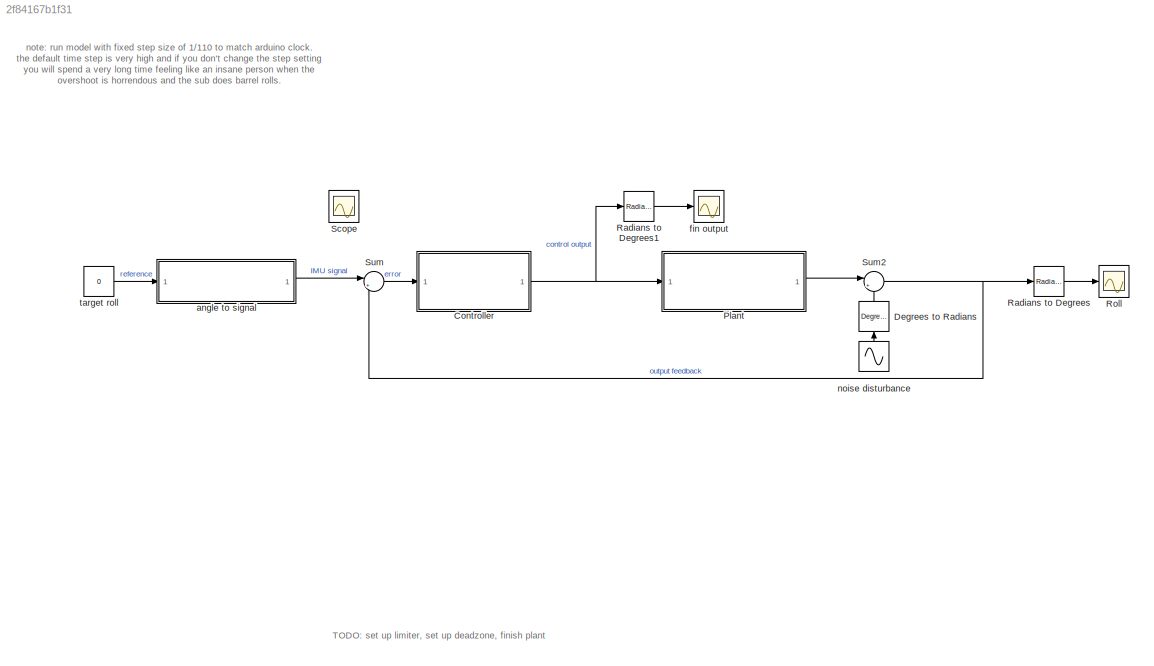
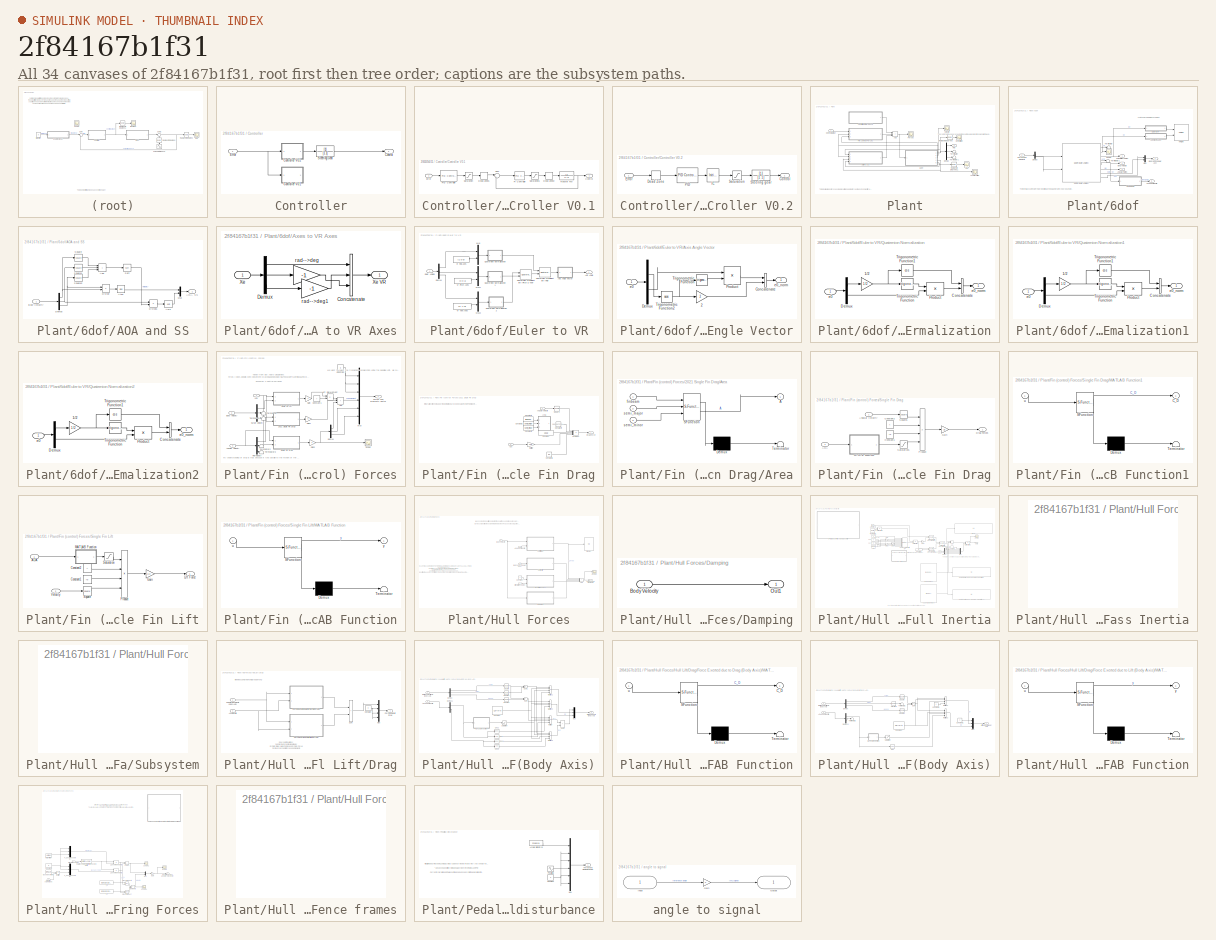
[diagram: thumbnail index - all 34 canvases of the model, root first then tree order]
MODEL slx_2f84167b1f31
KIND model
CONFIG AbsTol = auto
CONFIG EnableMultiTasking = on
CONFIG FixedStep = 0.00909
CONFIG MaxStep = 0.01
CONFIG MinStep = auto
CONFIG RelTol = 1e-4
CONFIG SampleTimeConstraint = Unconstrained
CONFIG SolverName = FixedStepAuto
CONFIG StartTime = 0.0
CONFIG StopTime = 20
BLOCK [SubSystem] Controller
  Ports = [1, 1]
  RequestExecContextInheritance = off
BLOCK [Outport] Controller/Control
BLOCK [SubSystem] Controller/Controller V0.1
  Commented = on
  Ports = [1, 1]
  RequestExecContextInheritance = off
BLOCK [Outport] Controller/Controller V0.1/Control
BLOCK [DeadZone] Controller/Controller V0.1/Dead Zone1
  LowerValue = -pi/180 * 2
  UpperValue = pi/180 * 2
BLOCK [DeadZone] Controller/Controller V0.1/Dead Zone2
  LowerValue = -pi/180 * 2
  UpperValue = pi/180 * 2
BLOCK [Inport] Controller/Controller V0.1/Error
BLOCK [Reference] Controller/Controller V0.1/PI Controller  REF=slpidlib/PID Controller
  Ports = [1, 1]
  SourceBlock = slpidlib/PID Controller
  SourceProductBaseCode = SL
  SourceType = PID 1dof
BLOCK [Reference] Controller/Controller V0.1/PID Controller  REF=slpidlib/PID Controller
  Ports = [1, 1]
  SourceBlock = slpidlib/PID Controller
  SourceProductBaseCode = SL
  SourceType = PID 1dof
BLOCK [Saturate] Controller/Controller V0.1/Saturation
  LowerLimit = -pi/4
  UpperLimit = pi/4
BLOCK [Saturate] Controller/Controller V0.1/Saturation1
  LowerLimit = -pi/4
  UpperLimit = pi/4
BLOCK [Sum] Controller/Controller V0.1/Sum
  Inputs = |+-
  Ports = [2, 1]
BLOCK [TransferFcn] Controller/Controller V0.1/Transfer Fcn
  Denominator = [1 1]
BLOCK [SubSystem] Controller/Controller V0.2
  Ports = [1, 1]
  RequestExecContextInheritance = off
BLOCK [Outport] Controller/Controller V0.2/Control
BLOCK [DeadZone] Controller/Controller V0.2/Dead Zone
  LowerValue = -pi/180 * 2
  UpperValue = pi/180 * 2
BLOCK [Inport] Controller/Controller V0.2/Error
BLOCK [InitialCondition] Controller/Controller V0.2/IC
  Value = 0
BLOCK [Reference] Controller/Controller V0.2/PID  REF=slpidlib/PID Controller
  Ports = [1, 1]
  SourceBlock = slpidlib/PID Controller
  SourceProductBaseCode = SL
  SourceType = PID 1dof
BLOCK [Saturate] Controller/Controller V0.2/Saturation
  LowerLimit = -pi/18
  UpperLimit = pi/18
BLOCK [TransferFcn] Controller/Controller V0.2/Steering gear
  Commented = through
  Denominator = [1 1]
BLOCK [Inport] Controller/Error
BLOCK [TransferFcn] Controller/Steering Gear
  Denominator = [1 1]
BLOCK [Reference] Degrees to Radians  REF=simulink_extras/Transformations/Degrees to
Radians
  NameLocation = right
  Ports = [1, 1]
  SourceBlock = simulink_extras/Transformations/Degrees to\nRadians
  SourceProductBaseCode = SL
  SourceType = DegreesToRadians
BLOCK [SubSystem] Plant
  Ports = [1, 1]
  RequestExecContextInheritance = off
BLOCK [SubSystem] Plant/6dof
  Ports = [1, 5]
  RequestExecContextInheritance = off
BLOCK [Reference] Plant/6dof/6DOF (Euler Angles)  REF=shared6dof/6DOF (Euler Angles)
  Ports = [2, 8]
  SourceBlock = shared6dof/6DOF (Euler Angles)
  SourceProductBaseCode = AE,PW,DR,MT,UV,VE
  SourceType = 6DOF EoM (Body Axis)
BLOCK [SubSystem] Plant/6dof/AOA and SS
  Ports = [1, 1]
  RequestExecContextInheritance = off
BLOCK [Outport] Plant/6dof/AOA and SS/AOA, SS
BLOCK [Sum] Plant/6dof/AOA and SS/Add
  IconShape = rectangular
  Inputs = +++
  Ports = [3, 1]
BLOCK [Trigonometry] Plant/6dof/AOA and SS/Asin
  Operator = asin
  Ports = [1, 1]
BLOCK [Trigonometry] Plant/6dof/AOA and SS/Atan
  Operator = atan
  Ports = [1, 1]
BLOCK [Inport] Plant/6dof/AOA and SS/Body Velocity
BLOCK [Demux] Plant/6dof/AOA and SS/Demux
  Outputs = 3
  Ports = [1, 3]
BLOCK [Product] Plant/6dof/AOA and SS/Divide
  Inputs = */
  Ports = [2, 1]
BLOCK [Product] Plant/6dof/AOA and SS/Divide1
  Inputs = */
  Ports = [2, 1]
BLOCK [Mux] Plant/6dof/AOA and SS/Mux
  DisplayOption = bar
  Inputs = 2
  Ports = [2, 1]
BLOCK [Sqrt] Plant/6dof/AOA and SS/Sqrt
BLOCK [Math] Plant/6dof/AOA and SS/Square
  Operator = square
  Ports = [1, 1]
BLOCK [Math] Plant/6dof/AOA and SS/Square1
  Operator = square
  Ports = [1, 1]
BLOCK [Math] Plant/6dof/AOA and SS/Square2
  Operator = square
  Ports = [1, 1]
BLOCK [Outport] Plant/6dof/AOA and Sideslip
  Port = 5
BLOCK [Outport] Plant/6dof/Angular Rates
  Port = 3
BLOCK [SubSystem] Plant/6dof/Axes to VR Axes
  Ports = [1, 1]
  RequestExecContextInheritance = off
BLOCK [Concatenate] Plant/6dof/Axes to VR Axes/Concatenate
  NumInputs = 3
  Ports = [3, 1]
BLOCK [Demux] Plant/6dof/Axes to VR Axes/Demux
  DisplayOption = none
  Outputs = 3
  Ports = [1, 3]
BLOCK [Inport] Plant/6dof/Axes to VR Axes/Xe
BLOCK [Outport] Plant/6dof/Axes to VR Axes/Xe VR
  VectorParamsAs1DForOutWhenUnconnected = off
BLOCK [Gain] Plant/6dof/Axes to VR Axes/rad-->deg
  Gain = -1
  NameLocation = top
  OutDataTypeStr = Inherit: Same as input
  ParamDataTypeStr = Inherit: Same as input
  SaturateOnIntegerOverflow = on
BLOCK [Gain] Plant/6dof/Axes to VR Axes/rad-->deg1
  Gain = -1
  NameLocation = top
  OutDataTypeStr = Inherit: Same as input
  ParamDataTypeStr = Inherit: Same as input
  SaturateOnIntegerOverflow = on
BLOCK [Outport] Plant/6dof/Body Velocity
  Port = 2
BLOCK [Outport] Plant/6dof/Body and Angular Accl
  Port = 4
BLOCK [Demux] Plant/6dof/Demux
  Outputs = 2
  Ports = [1, 2]
BLOCK [SubSystem] Plant/6dof/Euler to VR
  Ports = [1, 1]
  RequestExecContextInheritance = off
BLOCK [Outport] Plant/6dof/Euler to VR/Axis Angle
  VectorParamsAs1DForOutWhenUnconnected = off
BLOCK [SubSystem] Plant/6dof/Euler to VR/Axis Angle Vector
  Ports = [1, 1]
  RequestExecContextInheritance = off
BLOCK [Gain] Plant/6dof/Euler to VR/Axis Angle Vector/2
  Gain = 2
  OutDataTypeStr = Inherit: Same as input
  ParamDataTypeStr = Inherit: Same as input
  SaturateOnIntegerOverflow = on
BLOCK [Concatenate] Plant/6dof/Euler to VR/Axis Angle Vector/Concatenate
  Ports = [2, 1]
BLOCK [Demux] Plant/6dof/Euler to VR/Axis Angle Vector/Demux
  DisplayOption = none
  Outputs = [1 3 ]
  Ports = [1, 2]
BLOCK [Product] Plant/6dof/Euler to VR/Axis Angle Vector/Product
  InputSameDT = on
  Inputs = */
  OutDataTypeStr = Inherit: Same as first input
  Ports = [2, 1]
  SaturateOnIntegerOverflow = on
BLOCK [Trigonometry] Plant/6dof/Euler to VR/Axis Angle Vector/Trigonometric Function
  Ports = [1, 1]
BLOCK [Trigonometry] Plant/6dof/Euler to VR/Axis Angle Vector/Trigonometric Function2
  Operator = acos
  Ports = [1, 1]
BLOCK [Inport] Plant/6dof/Euler to VR/Axis Angle Vector/e0
BLOCK [Outport] Plant/6dof/Euler to VR/Axis Angle Vector/e0_norm
  VectorParamsAs1DForOutWhenUnconnected = off
BLOCK [Demux] Plant/6dof/Euler to VR/Demux
  DisplayOption = none
  Outputs = 3
  Ports = [1, 3]
BLOCK [Inport] Plant/6dof/Euler to VR/Euler Angles
BLOCK [Mux] Plant/6dof/Euler to VR/Mux
  DisplayOption = bar
  Inputs = 2
  Ports = [2, 1]
BLOCK [Mux] Plant/6dof/Euler to VR/Mux1
  DisplayOption = bar
  Inputs = 2
  Ports = [2, 1]
BLOCK [Mux] Plant/6dof/Euler to VR/Mux2
  DisplayOption = bar
  Inputs = 2
  Ports = [2, 1]
BLOCK [Reference] Plant/6dof/Euler to VR/Quaternion Multiplication (Pitch & Yaw)  REF=aerolibutil/Quaternion
Multiplication
  Ports = [2, 1]
  SourceBlock = aerolibutil/Quaternion\nMultiplication
  SourceProductBaseCode = AE
  SourceType = Quaternion Multiplication
BLOCK [Reference] Plant/6dof/Euler to VR/Quaternion Multiplication (Roll)  REF=aerolibutil/Quaternion
Multiplication
  Ports = [2, 1]
  SourceBlock = aerolibutil/Quaternion\nMultiplication
  SourceProductBaseCode = AE
  SourceType = Quaternion Multiplication
BLOCK [SubSystem] Plant/6dof/Euler to VR/Quaternion Normalization
  Ports = [1, 1]
  RequestExecContextInheritance = off
BLOCK [Gain] Plant/6dof/Euler to VR/Quaternion Normalization/1//2
  Gain = 1/2
  OutDataTypeStr = Inherit: Same as input
  ParamDataTypeStr = Inherit: Same as input
  SaturateOnIntegerOverflow = on
BLOCK [Concatenate] Plant/6dof/Euler to VR/Quaternion Normalization/Concatenate
  Ports = [2, 1]
BLOCK [Demux] Plant/6dof/Euler to VR/Quaternion Normalization/Demux
  DisplayOption = none
  Outputs = [1 3]
  Ports = [1, 2]
BLOCK [Product] Plant/6dof/Euler to VR/Quaternion Normalization/Product
  InputSameDT = on
  OutDataTypeStr = Inherit: Same as first input
  Ports = [2, 1]
  SaturateOnIntegerOverflow = on
BLOCK [Trigonometry] Plant/6dof/Euler to VR/Quaternion Normalization/Trigonometric Function
  Ports = [1, 1]
BLOCK [Trigonometry] Plant/6dof/Euler to VR/Quaternion Normalization/Trigonometric Function1
  Operator = cos
  Ports = [1, 1]
BLOCK [Inport] Plant/6dof/Euler to VR/Quaternion Normalization/e0
BLOCK [Outport] Plant/6dof/Euler to VR/Quaternion Normalization/e0_norm
  VectorParamsAs1DForOutWhenUnconnected = off
BLOCK [SubSystem] Plant/6dof/Euler to VR/Quaternion Normalization1
  Ports = [1, 1]
  RequestExecContextInheritance = off
BLOCK [Gain] Plant/6dof/Euler to VR/Quaternion Normalization1/1//2
  Gain = 1/2
  OutDataTypeStr = Inherit: Same as input
  ParamDataTypeStr = Inherit: Same as input
  SaturateOnIntegerOverflow = on
BLOCK [Concatenate] Plant/6dof/Euler to VR/Quaternion Normalization1/Concatenate
  Ports = [2, 1]
BLOCK [Demux] Plant/6dof/Euler to VR/Quaternion Normalization1/Demux
  DisplayOption = none
  Outputs = [1 3]
  Ports = [1, 2]
BLOCK [Product] Plant/6dof/Euler to VR/Quaternion Normalization1/Product
  InputSameDT = on
  OutDataTypeStr = Inherit: Same as first input
  Ports = [2, 1]
  SaturateOnIntegerOverflow = on
BLOCK [Trigonometry] Plant/6dof/Euler to VR/Quaternion Normalization1/Trigonometric Function
  Ports = [1, 1]
BLOCK [Trigonometry] Plant/6dof/Euler to VR/Quaternion Normalization1/Trigonometric Function1
  Operator = cos
  Ports = [1, 1]
BLOCK [Inport] Plant/6dof/Euler to VR/Quaternion Normalization1/e0
BLOCK [Outport] Plant/6dof/Euler to VR/Quaternion Normalization1/e0_norm
  VectorParamsAs1DForOutWhenUnconnected = off
BLOCK [SubSystem] Plant/6dof/Euler to VR/Quaternion Normalization2
  Ports = [1, 1]
  RequestExecContextInheritance = off
BLOCK [Gain] Plant/6dof/Euler to VR/Quaternion Normalization2/1//2
  Gain = 1/2
  OutDataTypeStr = Inherit: Same as input
  ParamDataTypeStr = Inherit: Same as input
  SaturateOnIntegerOverflow = on
BLOCK [Concatenate] Plant/6dof/Euler to VR/Quaternion Normalization2/Concatenate
  Ports = [2, 1]
BLOCK [Demux] Plant/6dof/Euler to VR/Quaternion Normalization2/Demux
  DisplayOption = none
  Outputs = [1 3]
  Ports = [1, 2]
BLOCK [Product] Plant/6dof/Euler to VR/Quaternion Normalization2/Product
  InputSameDT = on
  OutDataTypeStr = Inherit: Same as first input
  Ports = [2, 1]
  SaturateOnIntegerOverflow = on
BLOCK [Trigonometry] Plant/6dof/Euler to VR/Quaternion Normalization2/Trigonometric Function
  Ports = [1, 1]
BLOCK [Trigonometry] Plant/6dof/Euler to VR/Quaternion Normalization2/Trigonometric Function1
  Operator = cos
  Ports = [1, 1]
BLOCK [Inport] Plant/6dof/Euler to VR/Quaternion Normalization2/e0
BLOCK [Outport] Plant/6dof/Euler to VR/Quaternion Normalization2/e0_norm
  VectorParamsAs1DForOutWhenUnconnected = off
BLOCK [Constant] Plant/6dof/Euler to VR/Vr Pitch Axes
  NameLocation = top
  Value = [0 0 1]
BLOCK [Constant] Plant/6dof/Euler to VR/Vr Roll Axes
  NameLocation = top
  Value = [1 0 0]
BLOCK [Constant] Plant/6dof/Euler to VR/Vr Yaw Axes
  Value = [0 -1 0]
BLOCK [Inport] Plant/6dof/Forces and Moments
BLOCK [Mux] Plant/6dof/Mux
  DisplayOption = bar
  Inputs = 2
  Ports = [2, 1]
BLOCK [Outport] Plant/6dof/Orientation Angles
BLOCK [Scope] Plant/6dof/Scope
  Floating = off
  NumInputPorts = 1
  Ports = [1]
  ScopeSpecificationString = Simulink.scopes.TimeScopeBlockCfg('CurrentConfiguration', extmgr.ConfigurationSet(extmgr.Configuration('Core','General UI',true),extmgr.Configuration('Core','Source UI',true),extmgr.Configuration('Sources','WiredSimulink',true,'DataLoggingVariableName','ScopeData1'),extmgr.Configuration('Visuals','Time Domain',true,'SerializedDisplays',{struct('MinYLimReal','-6.75618','MaxYLimReal','44.51621','YLa...<+1381ch>
BLOCK [Terminator] Plant/6dof/Terminator
BLOCK [Terminator] Plant/6dof/Terminator1
BLOCK [Reference] Plant/6dof/VR Sink  REF=vrlib/VR Sink
  InstantiateOnLoad = on
  Ports = [2]
  SourceBlock = vrlib/VR Sink
  SourceProductBaseCode = SL
  SourceType = Virtual Reality Sink
BLOCK [Scope] Plant/AOA
  Floating = off
  NumInputPorts = 1
  Ports = [1]
  ScopeSpecificationString = Simulink.scopes.TimeScopeBlockCfg('CurrentConfiguration', extmgr.ConfigurationSet(extmgr.Configuration('Core','General UI',true),extmgr.Configuration('Core','Source UI',true),extmgr.Configuration('Sources','WiredSimulink',true,'DataLoggingVariableName','ScopeData1'),extmgr.Configuration('Visuals','Time Domain',true,'SerializedDisplays',{struct('MinYLimReal','-0.178','MaxYLimReal','1.60196','YLabel...<+1429ch>
BLOCK [Scope] Plant/Acceleration
  Floating = off
  NumInputPorts = 1
  Ports = [1]
  ScopeSpecificationString = Simulink.scopes.TimeScopeBlockCfg('CurrentConfiguration', extmgr.ConfigurationSet(extmgr.Configuration('Core','General UI',true),extmgr.Configuration('Core','Source UI',true),extmgr.Configuration('Sources','WiredSimulink',true,'DataLoggingVariableName','ScopeData1'),extmgr.Configuration('Visuals','Time Domain',true,'SerializedDisplays',{struct('MinYLimReal','-0.28683','MaxYLimReal','0.27767','YLab...<+1586ch>
BLOCK [Sum] Plant/Add
  IconShape = rectangular
  Inputs = +++
  Ports = [3, 1]
BLOCK [Inport] Plant/Control Output
BLOCK [Demux] Plant/Demux
  Outputs = 3
  Ports = [1, 3]
BLOCK [SubSystem] Plant/Fin (control) Forces
  Ports = [3, 1]
  RequestExecContextInheritance = off
BLOCK [SubSystem] Plant/Fin (control) Forces/2021 Single Fin Drag
  Commented = on
  Ports = [2, 1]
  RequestExecContextInheritance = off
BLOCK [Inport] Plant/Fin (control) Forces/2021 Single Fin Drag/AOA
  Port = 2
BLOCK [Inport] Plant/Fin (control) Forces/2021 Single Fin Drag/Angular Velocity
BLOCK [SubSystem] Plant/Fin (control) Forces/2021 Single Fin Drag/Area
  Commented = on
  ErrorFcn = Stateflow.Translate.translate
  PermitHierarchicalResolution = ExplicitOnly
  Ports = [3, 1]
  RequestExecContextInheritance = off
  SFBlockType = MATLAB Function
  TreatAsAtomicUnit = on
BLOCK [Demux] Plant/Fin (control) Forces/2021 Single Fin Drag/Area/ Demux 
  Outputs = 1
  Ports = [1, 1]
BLOCK [S-Function] Plant/Fin (control) Forces/2021 Single Fin Drag/Area/ SFunction 
  EnableBusSupport = on
  FunctionName = sf_sfun
  PortCounts = [3 2]
  Ports = [3, 2]
  SFcnIsStateOwnerBlock = off
  SFunctionDeploymentMode = off
  Tag = Stateflow S-Function 3
BLOCK [Terminator] Plant/Fin (control) Forces/2021 Single Fin Drag/Area/ Terminator 
BLOCK [Outport] Plant/Fin (control) Forces/2021 Single Fin Drag/Area/A
BLOCK [Inport] Plant/Fin (control) Forces/2021 Single Fin Drag/Area/finbeam
BLOCK [Inport] Plant/Fin (control) Forces/2021 Single Fin Drag/Area/semi_major
  Port = 2
BLOCK [Inport] Plant/Fin (control) Forces/2021 Single Fin Drag/Area/semi_minor
  Port = 3
BLOCK [Constant] Plant/Fin (control) Forces/2021 Single Fin Drag/Constant
  Value = 1/15.8
BLOCK [Constant] Plant/Fin (control) Forces/2021 Single Fin Drag/Constant1
  Commented = on
  Value = finbeam
BLOCK [Constant] Plant/Fin (control) Forces/2021 Single Fin Drag/Constant2
  Commented = on
  Value = semi_major
BLOCK [Constant] Plant/Fin (control) Forces/2021 Single Fin Drag/Constant3
  Commented = on
  Value = semi_minor
BLOCK [Constant] Plant/Fin (control) Forces/2021 Single Fin Drag/Constant4
  Value = 0.008007035277244291
BLOCK [Constant] Plant/Fin (control) Forces/2021 Single Fin Drag/Constant6
  Value = ro/2
BLOCK [Outport] Plant/Fin (control) Forces/2021 Single Fin Drag/Drag Force
BLOCK [Gain] Plant/Fin (control) Forces/2021 Single Fin Drag/Multiply
  Gain = 1.28
BLOCK [Product] Plant/Fin (control) Forces/2021 Single Fin Drag/Product
  Inputs = 5
  Ports = [5, 1]
BLOCK [Math] Plant/Fin (control) Forces/2021 Single Fin Drag/Square
  Operator = square
  Ports = [1, 1]
BLOCK [Inport] Plant/Fin (control) Forces/AOA
BLOCK [Sum] Plant/Fin (control) Forces/Add
  IconShape = rectangular
  Inputs = +++
  Ports = [3, 1]
BLOCK [Inport] Plant/Fin (control) Forces/Angular Velocity
  Port = 3
BLOCK [Inport] Plant/Fin (control) Forces/Body Velocity
  Port = 2
BLOCK [Constant] Plant/Fin (control) Forces/Constant
  Value = 0
BLOCK [Constant] Plant/Fin (control) Forces/Constant1
  Value = r
BLOCK [Demux] Plant/Fin (control) Forces/Demux
  Outputs = 3
  Ports = [1, 3]
BLOCK [Outport] Plant/Fin (control) Forces/Forces and Moments Vector
BLOCK [Gain] Plant/Fin (control) Forces/Gain
  Gain = 4
BLOCK [Gain] Plant/Fin (control) Forces/Gain1
  Commented = on
  Gain = -4
BLOCK [Gain] Plant/Fin (control) Forces/Gain2
  Gain = -4
BLOCK [Product] Plant/Fin (control) Forces/Lift Roll Moment
  Ports = [2, 1]
BLOCK [Mux] Plant/Fin (control) Forces/Mux
  DisplayOption = bar
  Inputs = 6
  Ports = [6, 1]
BLOCK [Demux] Plant/Fin (control) Forces/Roll Velocity
  Outputs = 3
  Ports = [1, 3]
BLOCK [Scope] Plant/Fin (control) Forces/Scope
  Floating = off
  NumInputPorts = 1
  Ports = [1]
  ScopeSpecificationString = Simulink.scopes.TimeScopeBlockCfg('CurrentConfiguration', extmgr.ConfigurationSet(extmgr.Configuration('Core','General UI',true),extmgr.Configuration('Core','Source UI',true),extmgr.Configuration('Sources','WiredSimulink',true,'DataLoggingVariableName','ScopeData1'),extmgr.Configuration('Visuals','Time Domain',true,'SerializedDisplays',{struct('MinYLimReal','-0.04094','MaxYLimReal','0.00455','YLab...<+1386ch>
BLOCK [SubSystem] Plant/Fin (control) Forces/Single Fin Drag
  Ports = [2, 1]
  RequestExecContextInheritance = off
BLOCK [Inport] Plant/Fin (control) Forces/Single Fin Drag/AOA
  Port = 2
BLOCK [Inport] Plant/Fin (control) Forces/Single Fin Drag/Angular Velocity
BLOCK [Constant] Plant/Fin (control) Forces/Single Fin Drag/Constant1
  Value = ro
BLOCK [Constant] Plant/Fin (control) Forces/Single Fin Drag/Constant2
  Value = A
BLOCK [Outport] Plant/Fin (control) Forces/Single Fin Drag/Drag Forces
BLOCK [Gain] Plant/Fin (control) Forces/Single Fin Drag/Gain
  Gain = 1/2
BLOCK [SubSystem] Plant/Fin (control) Forces/Single Fin Drag/MATLAB Function1
  ErrorFcn = Stateflow.Translate.translate
  PermitHierarchicalResolution = ExplicitOnly
  Ports = [1, 1]
  RequestExecContextInheritance = off
  SFBlockType = MATLAB Function
  TreatAsAtomicUnit = on
BLOCK [Demux] Plant/Fin (control) Forces/Single Fin Drag/MATLAB Function1/ Demux 
  Outputs = 1
  Ports = [1, 1]
BLOCK [S-Function] Plant/Fin (control) Forces/Single Fin Drag/MATLAB Function1/ SFunction 
  EnableBusSupport = on
  FunctionName = sf_sfun
  PortCounts = [1 2]
  Ports = [1, 2]
  SFcnIsStateOwnerBlock = off
  SFunctionDeploymentMode = off
  Tag = Stateflow S-Function 5
BLOCK [Terminator] Plant/Fin (control) Forces/Single Fin Drag/MATLAB Function1/ Terminator 
BLOCK [Outport] Plant/Fin (control) Forces/Single Fin Drag/MATLAB Function1/C_D
  VectorParamsAs1DForOutWhenUnconnected = off
BLOCK [Inport] Plant/Fin (control) Forces/Single Fin Drag/MATLAB Function1/u
BLOCK [Product] Plant/Fin (control) Forces/Single Fin Drag/Product
  Inputs = 4
  Ports = [4, 1]
BLOCK [Saturate] Plant/Fin (control) Forces/Single Fin Drag/Saturation1
  LowerLimit = -56.214
  UpperLimit = 56.214
BLOCK [Math] Plant/Fin (control) Forces/Single Fin Drag/Square1
  Operator = square
  Ports = [1, 1]
BLOCK [SubSystem] Plant/Fin (control) Forces/Single Fin Lift
  Ports = [2, 1]
  RequestExecContextInheritance = off
BLOCK [Inport] Plant/Fin (control) Forces/Single Fin Lift/AOA
BLOCK [Constant] Plant/Fin (control) Forces/Single Fin Lift/Constant1
  Value = ro
BLOCK [Constant] Plant/Fin (control) Forces/Single Fin Lift/Constant2
  Value = A
BLOCK [Gain] Plant/Fin (control) Forces/Single Fin Lift/Gain
  Gain = 1/2
BLOCK [Outport] Plant/Fin (control) Forces/Single Fin Lift/Lift Force
BLOCK [SubSystem] Plant/Fin (control) Forces/Single Fin Lift/MATLAB Function
  ErrorFcn = Stateflow.Translate.translate
  PermitHierarchicalResolution = ExplicitOnly
  Ports = [1, 1]
  RequestExecContextInheritance = off
  SFBlockType = MATLAB Function
  TreatAsAtomicUnit = on
BLOCK [Demux] Plant/Fin (control) Forces/Single Fin Lift/MATLAB Function/ Demux 
  Outputs = 1
  Ports = [1, 1]
BLOCK [S-Function] Plant/Fin (control) Forces/Single Fin Lift/MATLAB Function/ SFunction 
  EnableBusSupport = on
  FunctionName = sf_sfun
  PortCounts = [1 2]
  Ports = [1, 2]
  SFcnIsStateOwnerBlock = off
  SFunctionDeploymentMode = off
  Tag = Stateflow S-Function 4
BLOCK [Terminator] Plant/Fin (control) Forces/Single Fin Lift/MATLAB Function/ Terminator 
BLOCK [Inport] Plant/Fin (control) Forces/Single Fin Lift/MATLAB Function/u
BLOCK [Outport] Plant/Fin (control) Forces/Single Fin Lift/MATLAB Function/y
  VectorParamsAs1DForOutWhenUnconnected = off
BLOCK [Product] Plant/Fin (control) Forces/Single Fin Lift/Product
  Inputs = 4
  Ports = [4, 1]
BLOCK [Saturate] Plant/Fin (control) Forces/Single Fin Lift/Saturation
  LowerLimit = -56.214
  UpperLimit = 56.214
BLOCK [Math] Plant/Fin (control) Forces/Single Fin Lift/Square
  Operator = square
  Ports = [1, 1]
BLOCK [Inport] Plant/Fin (control) Forces/Single Fin Lift/Velocity
  Port = 2
BLOCK [Demux] Plant/Fin (control) Forces/Surge Velocity
  Outputs = 3
  Ports = [1, 3]
BLOCK [Terminator] Plant/Fin (control) Forces/Terminator
BLOCK [Terminator] Plant/Fin (control) Forces/Terminator1
BLOCK [Terminator] Plant/Fin (control) Forces/Terminator2
BLOCK [Terminator] Plant/Fin (control) Forces/Terminator3
BLOCK [Scope] Plant/Forces
  Floating = off
  NumInputPorts = 1
  Ports = [1]
  ScopeSpecificationString = Simulink.scopes.TimeScopeBlockCfg('CurrentConfiguration', extmgr.ConfigurationSet(extmgr.Configuration('Core','General UI',true),extmgr.Configuration('Core','Source UI',true),extmgr.Configuration('Sources','WiredSimulink',true,'DataLoggingVariableName','ScopeData2'),extmgr.Configuration('Visuals','Time Domain',true,'SerializedDisplays',{struct('MinYLimReal','-34.70687','MaxYLimReal','33.59758','YL...<+1548ch>
BLOCK [SubSystem] Plant/Hull Forces
  Ports = [4, 1]
  RequestExecContextInheritance = off
BLOCK [Inport] Plant/Hull Forces/AOA and Sideslip
  Port = 4
BLOCK [Sum] Plant/Hull Forces/Add
  IconShape = rectangular
  Inputs = ++++
  Ports = [4, 1]
BLOCK [Inport] Plant/Hull Forces/Body Velocity
  Port = 2
BLOCK [Inport] Plant/Hull Forces/Body and Angular Accl
  Port = 3
BLOCK [Constant] Plant/Hull Forces/Constant
BLOCK [SubSystem] Plant/Hull Forces/Damping
  Commented = on
  Ports = [1, 1]
  RequestExecContextInheritance = off
BLOCK [Inport] Plant/Hull Forces/Damping/Body Velocity
BLOCK [Outport] Plant/Hull Forces/Damping/Out1
BLOCK [Display] Plant/Hull Forces/Display
  Decimation = 1
  Ports = [1]
BLOCK [Outport] Plant/Hull Forces/Forces and Moments
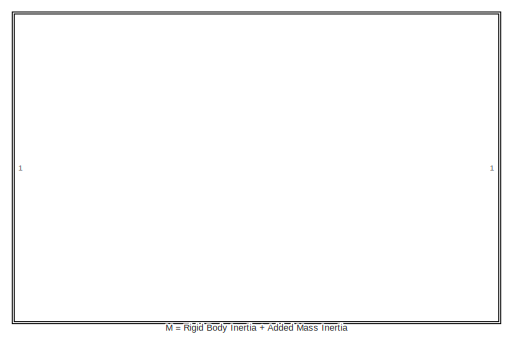
[diagram: Plant/Hull Forces/Hull Inertia - part 1/3, top left region]
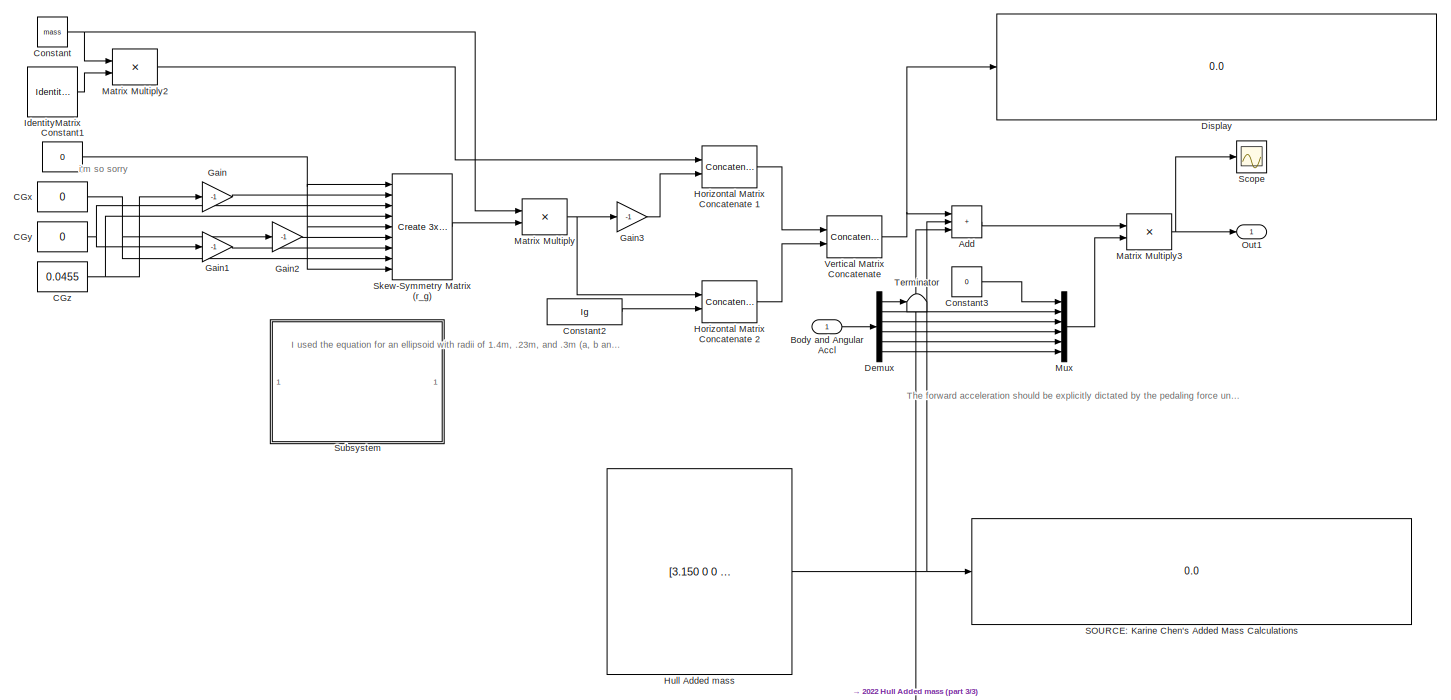
[diagram: Plant/Hull Forces/Hull Inertia - part 2/3, central region]
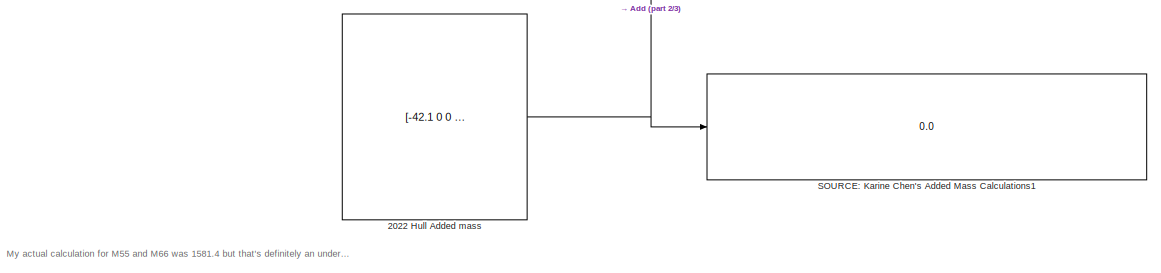
[diagram: Plant/Hull Forces/Hull Inertia - part 3/3, bottom right region]
BLOCK [SubSystem] Plant/Hull Forces/Hull Inertia
  Ports = [1, 1]
  RequestExecContextInheritance = off
BLOCK [Constant] Plant/Hull Forces/Hull Inertia/2022 Hull Added mass
  Value = [-42.1 0 0 0 0 0; 0 605.13 0 0 0 847.19; 0 0 605.13 0 -847.19 0; 0 0 0 0 0 0; 0 0 -847.19 0 3110 0; 0 847.19 0 0 0 3110]
BLOCK [Sum] Plant/Hull Forces/Hull Inertia/Add
  IconShape = rectangular
  Inputs = +++
  Ports = [3, 1]
BLOCK [Inport] Plant/Hull Forces/Hull Inertia/Body and Angular Accl
BLOCK [Constant] Plant/Hull Forces/Hull Inertia/CGx
  Value = 0
BLOCK [Constant] Plant/Hull Forces/Hull Inertia/CGy
  Value = 0
BLOCK [Constant] Plant/Hull Forces/Hull Inertia/CGz
  Value = 0.0455
BLOCK [Constant] Plant/Hull Forces/Hull Inertia/Constant
  Value = mass
BLOCK [Constant] Plant/Hull Forces/Hull Inertia/Constant1
  Value = 0
BLOCK [Constant] Plant/Hull Forces/Hull Inertia/Constant2
  Value = Ig
BLOCK [Constant] Plant/Hull Forces/Hull Inertia/Constant3
  Value = 0
BLOCK [Demux] Plant/Hull Forces/Hull Inertia/Demux
  Outputs = 6
  Ports = [1, 6]
BLOCK [Display] Plant/Hull Forces/Hull Inertia/Display
  Decimation = 1
  Ports = [1]
BLOCK [Gain] Plant/Hull Forces/Hull Inertia/Gain
  Gain = -1
BLOCK [Gain] Plant/Hull Forces/Hull Inertia/Gain1
  Gain = -1
BLOCK [Gain] Plant/Hull Forces/Hull Inertia/Gain2
  Gain = -1
BLOCK [Gain] Plant/Hull Forces/Hull Inertia/Gain3
  Gain = -1
BLOCK [Concatenate] Plant/Hull Forces/Hull Inertia/Horizontal Matrix Concatenate 1
  ConcatenateDimension = 2
  Mode = Multidimensional array
  Ports = [2, 1]
BLOCK [Concatenate] Plant/Hull Forces/Hull Inertia/Horizontal Matrix Concatenate 2
  ConcatenateDimension = 2
  Mode = Multidimensional array
  Ports = [2, 1]
BLOCK [Constant] Plant/Hull Forces/Hull Inertia/Hull Added mass
  Commented = on
  Value = [3.150 0 0 0 0 0; 0 2332.90 0 0 0 866.177; 0 0 2332.90 0 -866.177 0; 0 0 0 0 0 0; 0 0 -866.177 0 3110.500 0; 0 866.177 0 0 0 3110.5]
BLOCK [IdentityMatrix] Plant/Hull Forces/Hull Inertia/IdentityMatrix
  OutputDimensions = 3
  Ports = [0, 1]
  SampleTime = 0.00909
BLOCK [SubSystem] Plant/Hull Forces/Hull Inertia/M = Rigid Body Inertia + Added Mass Inertia
  Ports = []
  RequestExecContextInheritance = off
BLOCK [Product] Plant/Hull Forces/Hull Inertia/Matrix Multiply
  Ports = [2, 1]
BLOCK [Product] Plant/Hull Forces/Hull Inertia/Matrix Multiply2
  Ports = [2, 1]
BLOCK [Product] Plant/Hull Forces/Hull Inertia/Matrix Multiply3
  Multiplication = Matrix(*)
  Ports = [2, 1]
BLOCK [Mux] Plant/Hull Forces/Hull Inertia/Mux
  DisplayOption = bar
  Inputs = 6
  Ports = [6, 1]
BLOCK [Outport] Plant/Hull Forces/Hull Inertia/Out1
BLOCK [Display] Plant/Hull Forces/Hull Inertia/SOURCE: Karine Chen's Added Mass Calculations
  Decimation = 1
  Ports = [1]
BLOCK [Display] Plant/Hull Forces/Hull Inertia/SOURCE: Karine Chen's Added Mass Calculations1
  Decimation = 1
  Ports = [1]
BLOCK [Scope] Plant/Hull Forces/Hull Inertia/Scope
  Floating = off
  NumInputPorts = 1
  Ports = [1]
  ScopeSpecificationString = Simulink.scopes.TimeScopeBlockCfg('CurrentConfiguration', extmgr.ConfigurationSet(extmgr.Configuration('Core','General UI',true),extmgr.Configuration('Core','Source UI',true),extmgr.Configuration('Sources','WiredSimulink',true,'DataLoggingVariableName','ScopeData5'),extmgr.Configuration('Visuals','Time Domain',true,'SerializedDisplays',{struct('MinYLimReal','-14.99383','MaxYLimReal','8.96989','YLa...<+1626ch>
BLOCK [Reference] Plant/Hull Forces/Hull Inertia/Skew-Symmetry Matrix (r_g)  REF=sharedutil/Create 3x3 Matrix
  Ports = [9, 1]
  SourceBlock = sharedutil/Create 3x3 Matrix
  SourceProductBaseCode = AE,PW,DR,MT,UV,VE
  SourceType = Create 3x3 Matrix
BLOCK [SubSystem] Plant/Hull Forces/Hull Inertia/Subsystem
  Ports = []
  RequestExecContextInheritance = off
BLOCK [Terminator] Plant/Hull Forces/Hull Inertia/Terminator
BLOCK [Concatenate] Plant/Hull Forces/Hull Inertia/Vertical Matrix Concatenate
  Mode = Multidimensional array
  Ports = [2, 1]
BLOCK [SubSystem] Plant/Hull Forces/Hull Lift//Drag
  Ports = [2, 1]
  RequestExecContextInheritance = off
  VariantControl = c==1
BLOCK [Inport] Plant/Hull Forces/Hull Lift//Drag/AOA, Side Slip
  Port = 2
BLOCK [Constant] Plant/Hull Forces/Hull Lift//Drag/Constant
  Value = 0
BLOCK [SubSystem] Plant/Hull Forces/Hull Lift//Drag/Force Exerted due to Drag (Body Axis)
  Ports = [2, 1]
  RequestExecContextInheritance = off
BLOCK [Inport] Plant/Hull Forces/Hull Lift//Drag/Force Exerted due to Drag (Body Axis)/AOA and Side Slip
  Port = 2
BLOCK [Constant] Plant/Hull Forces/Hull Lift//Drag/Force Exerted due to Drag (Body Axis)/Constant
  Value = -1/2*ro*Af
BLOCK [Trigonometry] Plant/Hull Forces/Hull Lift//Drag/Force Exerted due to Drag (Body Axis)/Cos
  Operator = cos
  Ports = [1, 1]
BLOCK [Trigonometry] Plant/Hull Forces/Hull Lift//Drag/Force Exerted due to Drag (Body Axis)/Cos1
  Ports = [1, 1]
BLOCK [Trigonometry] Plant/Hull Forces/Hull Lift//Drag/Force Exerted due to Drag (Body Axis)/Cos2
  Ports = [1, 1]
BLOCK [Trigonometry] Plant/Hull Forces/Hull Lift//Drag/Force Exerted due to Drag (Body Axis)/Cos3
  Operator = cos
  Ports = [1, 1]
BLOCK [Demux] Plant/Hull Forces/Hull Lift//Drag/Force Exerted due to Drag (Body Axis)/Demux
  Outputs = 3
  Ports = [1, 3]
BLOCK [Demux] Plant/Hull Forces/Hull Lift//Drag/Force Exerted due to Drag (Body Axis)/Demux1
  Outputs = 2
  Ports = [1, 2]
BLOCK [Outport] Plant/Hull Forces/Hull Lift//Drag/Force Exerted due to Drag (Body Axis)/Drag Forces in Body Axis
  VectorParamsAs1DForOutWhenUnconnected = off
BLOCK [SubSystem] Plant/Hull Forces/Hull Lift//Drag/Force Exerted due to Drag (Body Axis)/MATLAB Function
  ErrorFcn = Stateflow.Translate.translate
  PermitHierarchicalResolution = ExplicitOnly
  Ports = [1, 1]
  RequestExecContextInheritance = off
  SFBlockType = MATLAB Function
  TreatAsAtomicUnit = on
BLOCK [Demux] Plant/Hull Forces/Hull Lift//Drag/Force Exerted due to Drag (Body Axis)/MATLAB Function/ Demux 
  Outputs = 1
  Ports = [1, 1]
BLOCK [S-Function] Plant/Hull Forces/Hull Lift//Drag/Force Exerted due to Drag (Body Axis)/MATLAB Function/ SFunction 
  EnableBusSupport = on
  FunctionName = sf_sfun
  PortCounts = [1 2]
  Ports = [1, 2]
  SFcnIsStateOwnerBlock = off
  SFunctionDeploymentMode = off
  Tag = Stateflow S-Function 1
BLOCK [Terminator] Plant/Hull Forces/Hull Lift//Drag/Force Exerted due to Drag (Body Axis)/MATLAB Function/ Terminator 
BLOCK [Outport] Plant/Hull Forces/Hull Lift//Drag/Force Exerted due to Drag (Body Axis)/MATLAB Function/C_D
  VectorParamsAs1DForOutWhenUnconnected = off
BLOCK [Inport] Plant/Hull Forces/Hull Lift//Drag/Force Exerted due to Drag (Body Axis)/MATLAB Function/u
BLOCK [Inport] Plant/Hull Forces/Hull Lift//Drag/Force Exerted due to Drag (Body Axis)/Marine Velocities in Body Axis
BLOCK [Product] Plant/Hull Forces/Hull Lift//Drag/Force Exerted due to Drag (Body Axis)/Multiply
  Inputs = 4
  Ports = [4, 1]
BLOCK [Product] Plant/Hull Forces/Hull Lift//Drag/Force Exerted due to Drag (Body Axis)/Multiply1
  Inputs = 4
  Ports = [4, 1]
BLOCK [Product] Plant/Hull Forces/Hull Lift//Drag/Force Exerted due to Drag (Body Axis)/Multiply2
  Inputs = 4
  Ports = [4, 1]
BLOCK [Product] Plant/Hull Forces/Hull Lift//Drag/Force Exerted due to Drag (Body Axis)/Multiply3
  Inputs = 4
  Ports = [4, 1]
BLOCK [Mux] Plant/Hull Forces/Hull Lift//Drag/Force Exerted due to Drag (Body Axis)/Mux
  DisplayOption = bar
  Inputs = 3
  Ports = [3, 1]
BLOCK [Saturate] Plant/Hull Forces/Hull Lift//Drag/Force Exerted due to Drag (Body Axis)/Saturation
  LowerLimit = -73.2049
  UpperLimit = 73.2049
BLOCK [Math] Plant/Hull Forces/Hull Lift//Drag/Force Exerted due to Drag (Body Axis)/Square
  Operator = square
  Ports = [1, 1]
  SignedPower = on
BLOCK [Math] Plant/Hull Forces/Hull Lift//Drag/Force Exerted due to Drag (Body Axis)/Square1
  Operator = square
  Ports = [1, 1]
  SignedPower = on
BLOCK [Math] Plant/Hull Forces/Hull Lift//Drag/Force Exerted due to Drag (Body Axis)/Square2
  Operator = square
  Ports = [1, 1]
  SignedPower = on
BLOCK [Sum] Plant/Hull Forces/Hull Lift//Drag/Force Exerted due to Drag (Body Axis)/Sum
  IconShape = rectangular
  Ports = [2, 1]
BLOCK [Sum] Plant/Hull Forces/Hull Lift//Drag/Force Exerted due to Drag (Body Axis)/Sum1
  IconShape = rectangular
  Ports = [2, 1]
BLOCK [Sum] Plant/Hull Forces/Hull Lift//Drag/Force Exerted due to Drag (Body Axis)/Sum2
  IconShape = rectangular
  Ports = [2, 1]
BLOCK [SubSystem] Plant/Hull Forces/Hull Lift//Drag/Force Exerted due to Lift (Body Axis)
  Ports = [2, 1]
  RequestExecContextInheritance = off
BLOCK [Inport] Plant/Hull Forces/Hull Lift//Drag/Force Exerted due to Lift (Body Axis)/AOA and Side Slip
  Port = 2
BLOCK [Constant] Plant/Hull Forces/Hull Lift//Drag/Force Exerted due to Lift (Body Axis)/Constant
  Value = 1/2*ro*Af
BLOCK [Constant] Plant/Hull Forces/Hull Lift//Drag/Force Exerted due to Lift (Body Axis)/Constant1
  Value = 0
BLOCK [Constant] Plant/Hull Forces/Hull Lift//Drag/Force Exerted due to Lift (Body Axis)/Constant2
  Value = 0
BLOCK [Trigonometry] Plant/Hull Forces/Hull Lift//Drag/Force Exerted due to Lift (Body Axis)/Cos
  Operator = cos
  Ports = [1, 1]
BLOCK [Demux] Plant/Hull Forces/Hull Lift//Drag/Force Exerted due to Lift (Body Axis)/Demux
  Outputs = 3
  Ports = [1, 3]
BLOCK [Demux] Plant/Hull Forces/Hull Lift//Drag/Force Exerted due to Lift (Body Axis)/Demux1
  Outputs = 2
  Ports = [1, 2]
BLOCK [Outport] Plant/Hull Forces/Hull Lift//Drag/Force Exerted due to Lift (Body Axis)/Lift Forces in Body Axis
  VectorParamsAs1DForOutWhenUnconnected = off
BLOCK [SubSystem] Plant/Hull Forces/Hull Lift//Drag/Force Exerted due to Lift (Body Axis)/MATLAB Function
  ErrorFcn = Stateflow.Translate.translate
  PermitHierarchicalResolution = ExplicitOnly
  Ports = [1, 1]
  RequestExecContextInheritance = off
  SFBlockType = MATLAB Function
  TreatAsAtomicUnit = on
BLOCK [Demux] Plant/Hull Forces/Hull Lift//Drag/Force Exerted due to Lift (Body Axis)/MATLAB Function/ Demux 
  Outputs = 1
  Ports = [1, 1]
BLOCK [S-Function] Plant/Hull Forces/Hull Lift//Drag/Force Exerted due to Lift (Body Axis)/MATLAB Function/ SFunction 
  EnableBusSupport = on
  FunctionName = sf_sfun
  PortCounts = [1 2]
  Ports = [1, 2]
  SFcnIsStateOwnerBlock = off
  SFunctionDeploymentMode = off
  Tag = Stateflow S-Function 2
BLOCK [Terminator] Plant/Hull Forces/Hull Lift//Drag/Force Exerted due to Lift (Body Axis)/MATLAB Function/ Terminator 
BLOCK [Inport] Plant/Hull Forces/Hull Lift//Drag/Force Exerted due to Lift (Body Axis)/MATLAB Function/u
BLOCK [Outport] Plant/Hull Forces/Hull Lift//Drag/Force Exerted due to Lift (Body Axis)/MATLAB Function/y
  VectorParamsAs1DForOutWhenUnconnected = off
BLOCK [Inport] Plant/Hull Forces/Hull Lift//Drag/Force Exerted due to Lift (Body Axis)/Marine Velocities in Body Axis
BLOCK [Product] Plant/Hull Forces/Hull Lift//Drag/Force Exerted due to Lift (Body Axis)/Multiply1
  Inputs = 4
  Ports = [4, 1]
BLOCK [Product] Plant/Hull Forces/Hull Lift//Drag/Force Exerted due to Lift (Body Axis)/Multiply2
  Inputs = 4
  Ports = [4, 1]
BLOCK [Mux] Plant/Hull Forces/Hull Lift//Drag/Force Exerted due to Lift (Body Axis)/Mux
  DisplayOption = bar
  Inputs = 3
  Ports = [3, 1]
BLOCK [Saturate] Plant/Hull Forces/Hull Lift//Drag/Force Exerted due to Lift (Body Axis)/Saturation
  LowerLimit = -73.2049
  UpperLimit = 73.2049
BLOCK [Math] Plant/Hull Forces/Hull Lift//Drag/Force Exerted due to Lift (Body Axis)/Square
  Operator = square
  Ports = [1, 1]
  SignedPower = on
BLOCK [Math] Plant/Hull Forces/Hull Lift//Drag/Force Exerted due to Lift (Body Axis)/Square1
  Operator = square
  Ports = [1, 1]
  SignedPower = on
BLOCK [Math] Plant/Hull Forces/Hull Lift//Drag/Force Exerted due to Lift (Body Axis)/Square2
  Operator = square
  Ports = [1, 1]
  SignedPower = on
BLOCK [Sum] Plant/Hull Forces/Hull Lift//Drag/Force Exerted due to Lift (Body Axis)/Sum
  IconShape = rectangular
  Ports = [2, 1]
BLOCK [Terminator] Plant/Hull Forces/Hull Lift//Drag/Force Exerted due to Lift (Body Axis)/Terminator1
BLOCK [Terminator] Plant/Hull Forces/Hull Lift//Drag/Force Exerted due to Lift (Body Axis)/Terminator2
BLOCK [Outport] Plant/Hull Forces/Hull Lift//Drag/Force due to Lift, Drag
  VectorParamsAs1DForOutWhenUnconnected = off
BLOCK [Mux] Plant/Hull Forces/Hull Lift//Drag/Mux
  DisplayOption = bar
  Ports = [4, 1]
BLOCK [Inport] Plant/Hull Forces/Hull Lift//Drag/Submarine Velocity (Body Axis) 
BLOCK [Sum] Plant/Hull Forces/Hull Lift//Drag/Sum
  IconShape = rectangular
  Ports = [2, 1]
BLOCK [Inport] Plant/Hull Forces/Orientation Angles
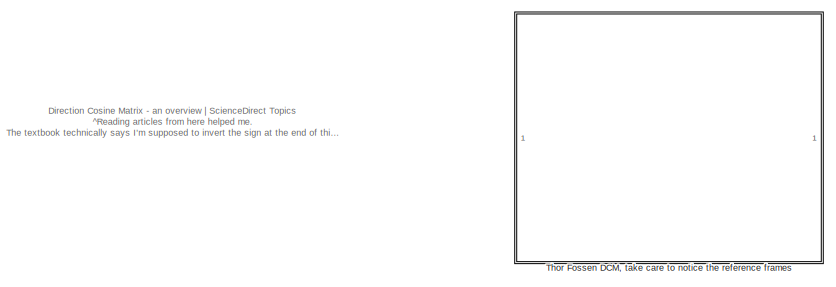
[diagram: Plant/Hull Forces/Restoring Forces - part 1/2, top right region]
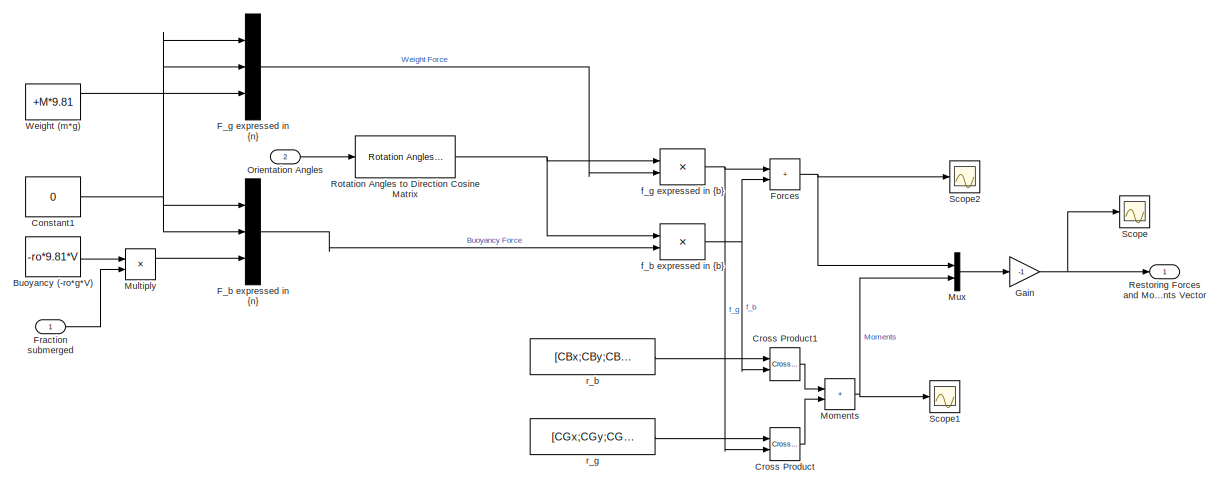
[diagram: Plant/Hull Forces/Restoring Forces - part 2/2, full width, bottom band]
BLOCK [SubSystem] Plant/Hull Forces/Restoring Forces
  Ports = [2, 1]
  RequestExecContextInheritance = off
BLOCK [Constant] Plant/Hull Forces/Restoring Forces/Buoyancy (-ro*g*V)
  Value = -ro*9.81*V
BLOCK [Constant] Plant/Hull Forces/Restoring Forces/Constant1
  Value = 0
BLOCK [Reference] Plant/Hull Forces/Restoring Forces/Cross Product  REF=vrlib/Utilities/Cross Product
  Ports = [2, 1]
  SourceBlock = vrlib/Utilities/Cross Product
  SourceProductBaseCode = SL
  SourceType = Cross Product
BLOCK [Reference] Plant/Hull Forces/Restoring Forces/Cross Product1  REF=vrlib/Utilities/Cross Product
  Ports = [2, 1]
  SourceBlock = vrlib/Utilities/Cross Product
  SourceProductBaseCode = SL
  SourceType = Cross Product
BLOCK [Mux] Plant/Hull Forces/Restoring Forces/F_b expressed in {n}
  DisplayOption = bar
  Inputs = 3
  Ports = [3, 1]
BLOCK [Mux] Plant/Hull Forces/Restoring Forces/F_g expressed in {n}
  DisplayOption = bar
  Inputs = 3
  Ports = [3, 1]
BLOCK [Sum] Plant/Hull Forces/Restoring Forces/Forces
  IconShape = rectangular
  Ports = [2, 1]
BLOCK [Inport] Plant/Hull Forces/Restoring Forces/Fraction submerged 
BLOCK [Gain] Plant/Hull Forces/Restoring Forces/Gain
  Commented = through
  Gain = -1
BLOCK [Sum] Plant/Hull Forces/Restoring Forces/Moments
  IconShape = rectangular
  Ports = [2, 1]
BLOCK [Product] Plant/Hull Forces/Restoring Forces/Multiply
  Ports = [2, 1]
BLOCK [Mux] Plant/Hull Forces/Restoring Forces/Mux
  DisplayOption = bar
  Inputs = 2
  Ports = [2, 1]
BLOCK [Inport] Plant/Hull Forces/Restoring Forces/Orientation Angles
  Port = 2
BLOCK [Outport] Plant/Hull Forces/Restoring Forces/Restoring Forces and Moments Vector
BLOCK [Reference] Plant/Hull Forces/Restoring Forces/Rotation Angles to Direction Cosine Matrix  REF=sharedtransform/Rotation Angles to
Direction Cosine Matrix
  AttributesFormatString = Rotation Order: %<rotationOrder>
  Ports = [1, 1]
  SourceBlock = sharedtransform/Rotation Angles to\nDirection Cosine Matrix
  SourceProductBaseCode = AE,PW,DR,MT,UV,VE
  SourceType = Ang2DCM
BLOCK [Scope] Plant/Hull Forces/Restoring Forces/Scope
  Floating = off
  NumInputPorts = 1
  Ports = [1]
  ScopeSpecificationString = Simulink.scopes.TimeScopeBlockCfg('CurrentConfiguration', extmgr.ConfigurationSet(extmgr.Configuration('Core','General UI',true),extmgr.Configuration('Core','Source UI',true),extmgr.Configuration('Sources','WiredSimulink',true,'DataLoggingVariableName','ScopeData4'),extmgr.Configuration('Visuals','Time Domain',true,'SerializedDisplays',{struct('MinYLimReal','-13.54313','MaxYLimReal','9.58861','YLa...<+1546ch>
BLOCK [Scope] Plant/Hull Forces/Restoring Forces/Scope1
  Floating = off
  NumInputPorts = 1
  Ports = [1]
  ScopeSpecificationString = Simulink.scopes.TimeScopeBlockCfg('CurrentConfiguration', extmgr.ConfigurationSet(extmgr.Configuration('Core','General UI',true),extmgr.Configuration('Core','Source UI',true),extmgr.Configuration('Sources','WiredSimulink',true,'DataLoggingVariableName','ScopeData1'),extmgr.Configuration('Visuals','Time Domain',true,'SerializedDisplays',{struct('MinYLimReal','-13.54313','MaxYLimReal','9.58861','YLa...<+1426ch>
BLOCK [Scope] Plant/Hull Forces/Restoring Forces/Scope2
  Floating = off
  NumInputPorts = 1
  Ports = [1]
  ScopeSpecificationString = Simulink.scopes.TimeScopeBlockCfg('CurrentConfiguration', extmgr.ConfigurationSet(extmgr.Configuration('Core','General UI',true),extmgr.Configuration('Core','Source UI',true),extmgr.Configuration('Sources','WiredSimulink',true,'DataLoggingVariableName','ScopeData2'),extmgr.Configuration('Visuals','Time Domain',true,'SerializedDisplays',{struct('MinYLimReal','-7.15696','MaxYLimReal','2.21724','YLab...<+1417ch>
BLOCK [SubSystem] Plant/Hull Forces/Restoring Forces/Thor Fossen DCM, take care to notice the reference frames
  Ports = []
  RequestExecContextInheritance = off
BLOCK [Constant] Plant/Hull Forces/Restoring Forces/Weight (m*g)
  Value = +M*9.81
BLOCK [Product] Plant/Hull Forces/Restoring Forces/f_b expressed in {b}
  Multiplication = Matrix(*)
  Ports = [2, 1]
BLOCK [Product] Plant/Hull Forces/Restoring Forces/f_g expressed in {b}
  Multiplication = Matrix(*)
  Ports = [2, 1]
BLOCK [Constant] Plant/Hull Forces/Restoring Forces/r_b
  Value = [CBx;CBy;CBz]
BLOCK [Constant] Plant/Hull Forces/Restoring Forces/r_g
  Value = [CGx;CGy;CGz]
BLOCK [Scope] Plant/Hull Forces/Scope
  Floating = off
  NumInputPorts = 1
  Ports = [1]
  ScopeSpecificationString = Simulink.scopes.TimeScopeBlockCfg('CurrentConfiguration', extmgr.ConfigurationSet(extmgr.Configuration('Core','General UI',true),extmgr.Configuration('Core','Source UI',true),extmgr.Configuration('Sources','WiredSimulink',true,'DataLoggingVariableName','ScopeData3'),extmgr.Configuration('Visuals','Time Domain',true,'SerializedDisplays',{struct('MinYLimReal','-17.6625','MaxYLimReal','13.89017','YLa...<+1544ch>
BLOCK [Scope] Plant/Orientation
  Floating = off
  NumInputPorts = 1
  Ports = [1]
  ScopeSpecificationString = Simulink.scopes.TimeScopeBlockCfg('CurrentConfiguration', extmgr.ConfigurationSet(extmgr.Configuration('Core','General UI',true),extmgr.Configuration('Core','Source UI',true),extmgr.Configuration('Sources','WiredSimulink',true,'DataLoggingVariableName','ScopeData4'),extmgr.Configuration('Visuals','Time Domain',true,'SerializedDisplays',{struct('MinYLimReal','-13.7486','MaxYLimReal','21.44728','YLa...<+1427ch>
BLOCK [SubSystem] Plant/Pedalling disturbance
  Ports = [0, 1]
  RequestExecContextInheritance = off
BLOCK [Constant] Plant/Pedalling disturbance/Acceleration force
  Value = mass*a
BLOCK [Constant] Plant/Pedalling disturbance/Constant
  Value = 0
BLOCK [Outport] Plant/Pedalling disturbance/Forces and Moments Vector
BLOCK [Mux] Plant/Pedalling disturbance/Mux
  DisplayOption = bar
  Inputs = 6
  Ports = [6, 1]
BLOCK [Sin] Plant/Pedalling disturbance/Pedalling
  Amplitude = f
  Frequency = 2*pi * 90/60
  Ports = [0, 1]
  SampleTime = 0
BLOCK [Reference] Plant/Radians to Degrees  REF=simulink_extras/Transformations/Radians
to Degrees
  Ports = [1, 1]
  SourceBlock = simulink_extras/Transformations/Radians\nto Degrees
  SourceProductBaseCode = SL
  SourceType = RadiansToDegrees
BLOCK [Reference] Plant/Radians to Degrees1  REF=simulink_extras/Transformations/Radians
to Degrees
  Ports = [1, 1]
  SourceBlock = simulink_extras/Transformations/Radians\nto Degrees
  SourceProductBaseCode = SL
  SourceType = RadiansToDegrees
BLOCK [Outport] Plant/Roll
BLOCK [Terminator] Plant/Terminator
BLOCK [Terminator] Plant/Terminator1
BLOCK [Scope] Plant/Velocity
  Floating = off
  NumInputPorts = 1
  Ports = [1]
  ScopeSpecificationString = Simulink.scopes.TimeScopeBlockCfg('CurrentConfiguration', extmgr.ConfigurationSet(extmgr.Configuration('Core','General UI',true),extmgr.Configuration('Core','Source UI',true),extmgr.Configuration('Sources','WiredSimulink',true,'DataLoggingVariableName','ScopeData1'),extmgr.Configuration('Visuals','Time Domain',true,'SerializedDisplays',{struct('MinYLimReal','-0.54945','MaxYLimReal','4.6998','YLabe...<+1454ch>
BLOCK [Reference] Radians to Degrees  REF=simulink_extras/Transformations/Radians
to Degrees
  Ports = [1, 1]
  SourceBlock = simulink_extras/Transformations/Radians\nto Degrees
  SourceProductBaseCode = SL
  SourceType = RadiansToDegrees
BLOCK [Reference] Radians to Degrees1  REF=simulink_extras/Transformations/Radians
to Degrees
  Ports = [1, 1]
  SourceBlock = simulink_extras/Transformations/Radians\nto Degrees
  SourceProductBaseCode = SL
  SourceType = RadiansToDegrees
BLOCK [Scope] Roll
  Floating = off
  NumInputPorts = 1
  Ports = [1]
  ScopeSpecificationString = Simulink.scopes.TimeScopeBlockCfg('CurrentConfiguration', extmgr.ConfigurationSet(extmgr.Configuration('Core','General UI',true),extmgr.Configuration('Core','Source UI',true),extmgr.Configuration('Sources','WiredSimulink',true,'DataLoggingVariableName','ScopeData1'),extmgr.Configuration('Visuals','Time Domain',true,'SerializedDisplays',{struct('MinYLimReal','-13.38263','MaxYLimReal','18.15363','YL...<+1438ch>
BLOCK [Scope] Scope
  Floating = off
  IOType = viewer
  NumInputPorts = 1
  Ports = []
  ScopeSpecificationString = Simulink.scopes.TimeScopeBlockCfg('CurrentConfiguration', extmgr.ConfigurationSet(extmgr.Configuration('Core','General UI',true),extmgr.Configuration('Core','Source UI',true),extmgr.Configuration('Sources','WiredSimulink',true,'DataLoggingVariableName','ScopeData1'),extmgr.Configuration('Visuals','Time Domain',true,'SerializedDisplays',{struct('MinYLimReal','-21.69063','MaxYLimReal','32.45033','YL...<+1398ch>
BLOCK [Sum] Sum
  Inputs = |+-
  Ports = [2, 1]
BLOCK [Sum] Sum2
  Inputs = |++
  Ports = [2, 1]
BLOCK [SubSystem] angle to signal
  Commented = through
  Ports = [1, 1]
  RequestExecContextInheritance = off
BLOCK [Gain] angle to signal/Gain
BLOCK [Inport] angle to signal/Input
  IconDisplay = Signal name
BLOCK [Outport] angle to signal/Output
  IconDisplay = Port number and signal name
BLOCK [Scope] fin output
  Floating = off
  NumInputPorts = 1
  Ports = [1]
  ScopeSpecificationString = Simulink.scopes.TimeScopeBlockCfg('CurrentConfiguration', extmgr.ConfigurationSet(extmgr.Configuration('Core','General UI',true),extmgr.Configuration('Core','Source UI',true),extmgr.Configuration('Sources','WiredSimulink',true,'DataLoggingVariableName','ScopeData1'),extmgr.Configuration('Visuals','Time Domain',true,'SerializedDisplays',{struct('MinYLimReal','-10.92912','MaxYLimReal','11.16256','YL...<+1415ch>
BLOCK [Sin] noise disturbance
  Amplitude = 0
  Commented = on
  NameLocation = right
  Ports = [0, 1]
  SampleTime = 0
BLOCK [Constant] target roll
  Value = 0
ANNOTATION (root): TODO: set up limiter, set up deadzone, finish plant
ANNOTATION (root): note: run model with fixed step size of 1/110 to match arduino clock. the default time step is very high and if you don't change the step setting you will spend a very long time feeling like an insane person when the overshoot is horrendous and the sub does barrel rolls.
ANNOTATION Plant: TODO: validate post processing block, finish adding forces to environment, thrust forces and moments?
ANNOTATION Plant: The restoring forces are causing the sub to keel and I don't know how to make it stop. I will conveniently pretend the sub is not keeling for my fin control block
ANNOTATION Plant/6dof: The inertia assumes we're working with a principal axis frame (no products of inertia). I think this is okay because the submarine should be symmetrical.
ANNOTATION Plant/6dof: snatched from simulink examples
ANNOTATION Plant/Fin (control) Forces: My understanding of drag is that because it runs parallel to the motion of the flow, we can take the same velocity component as the force/moment we are seeking (unlike with lift, which runs perpendicular so we need to use a different component and make the appropriate transformation). Thus, we take the roll velocity to get roll drag but translational velocity to go from lift to roll.
ANNOTATION Plant/Fin (control) Forces: Taken from last year's calculations: https://docs.google.com/document/d/1lyuNGJgZCwyaSb0-N62TocKzuqPIs1clfRBc65zRXIM/edit?usp=sharing assumes 4 control surfaces
ANNOTATION Plant/Fin (control) Forces: We want to select the translational acceleration using the pedaling unit, we currently don't care what the effect of lift and drag is on the translational motion of the sub
ANNOTATION Plant/Fin (control) Forces/2021 Single Fin Drag: integral function not supported w simulink; hardcoded value from HPS Roll Control Simulation. I am dubious if this calculation makes any sense. I will leave it in the model but commented out. I think the idea they were going for is since we are rotating, the fins are kind of slapping the water to create drag, hence the flat plate drag coefficient, but that is not how I understand the flow of water...<+140ch>
ANNOTATION Plant/Hull Forces: RELEVANT MEASUREMENTS FOR RBD AND WEIGHT AND BUOYANCY CALCULATIONS Underdawg 2020 Centroid Type Units x (longitudinal) y (lateral) z (vertical) Center of Gravity m -0.224 0.0041 -0.0455 Center of Buoyancy m -0.0122 0.0003 -0.0089 Inputting the x and y centroids causes the calculations to eventually make the sub do a barrel roll. I swear I put the equations in correctly, but future teams will likel...<+294ch>
ANNOTATION Plant/Hull Forces: I was hoping to model lift and drag from the hull of the submarine but I couldn't get it to work on my own for some reason. This iteration of the hull lift/drag hydrodynamics comes from an example on Mathworks: https://github.com/mathworks/AUV-modeling-and-sim Obviously, I modified the parameters to match the HPS as best I could, but I hope someone in the future will double check my numbers, espec...<+109ch>
ANNOTATION Plant/Hull Forces/Hull Inertia: I used the equation for an ellipsoid with radii of 1.4m, .23m, and .3m (a, b and c in the ellipsoid formula respectively) to calculate the inertia. Those values were sort of eyeballed from the 2020 HPS report (but I double checked it with the CAD model and it was good enough). You can change the coordinate system to make it easier to calculate the volume (find the volume of 1 octant and multiply b...<+68ch>
ANNOTATION Plant/Hull Forces/Hull Inertia: My actual calculation for M55 and M66 was 1581.4 but that's definitely an underestimate because the submarine keels heavily. Even at 3110, it's still an underestimate and the submarine still keels, though at least it doesn't point toward the sky. I defaulted to Karine's calculation, but her numbers don't match the equations she presented (hence why the matrix was recalculated) (I asked TWO math ma...<+203ch>
ANNOTATION Plant/Hull Forces/Hull Inertia: The forward acceleration should be explicitly dictated by the pedaling force unit. Otherwise, let Simulink calculate the current accelation.
ANNOTATION Plant/Hull Forces/Hull Inertia: i'm so sorry
ANNOTATION Plant/Hull Forces/Hull Lift//Drag: Source of Equations: Submarine Dynamic Modeling, by Dr Peter Ridley Julien Fontan and Dr Peter Corke Part: Hydrodynamic forces and moments
ANNOTATION Plant/Hull Forces/Hull Lift//Drag: I think the submarine frontal area is wrong
ANNOTATION Plant/Hull Forces/Restoring Forces: Direction Cosine Matrix - an overview | ScienceDirect Topics ^Reading articles from here helped me. The textbook technically says I'm supposed to invert the sign at the end of this, but that breaks the simulation and the sub spins in circles instead of oscillating. I think the justification for the sign-flipping is that we do it to move the force and moments vector to the left side of the equation...<+121ch>
ANNOTATION Plant/Pedalling disturbance: https://thebodymechanic.com.au/cycling-cadence-what-is-it-and-why-you-should-keep-a-close-eye-on-yours/ "advanced and elite cyclists pedal anywhere from 90 to 110 RPM." Current cycle rate is 90 RPM, assuming an advanced cyclist's pedal rate is similar to the HPS pilot's pedal rate
LINE Controller/Controller V0.1/Dead Zone1:1 -> Controller/Controller V0.1/Sum:1
LINE Controller/Controller V0.1/Dead Zone2:1 -> Controller/Controller V0.1/Transfer Fcn:1
LINE Controller/Controller V0.1/Error:1 -> Controller/Controller V0.1/PID Controller:1
LINE Controller/Controller V0.1/PI Controller:1 -> Controller/Controller V0.1/Saturation1:1
LINE Controller/Controller V0.1/PID Controller:1 -> Controller/Controller V0.1/Saturation:1
LINE Controller/Controller V0.1/Saturation1:1 -> Controller/Controller V0.1/Dead Zone2:1
LINE Controller/Controller V0.1/Saturation:1 -> Controller/Controller V0.1/Dead Zone1:1
LINE Controller/Controller V0.1/Sum:1 -> Controller/Controller V0.1/PI Controller:1
NET Controller/Controller V0.1/Transfer Fcn:1 -> Controller/Controller V0.1/Control:1, Controller/Controller V0.1/Sum:2
LINE Controller/Controller V0.2/Dead Zone:1 -> Controller/Controller V0.2/PID:1
LINE Controller/Controller V0.2/Error:1 -> Controller/Controller V0.2/Dead Zone:1
LINE Controller/Controller V0.2/IC:1 -> Controller/Controller V0.2/Saturation:1
LINE Controller/Controller V0.2/PID:1 -> Controller/Controller V0.2/IC:1
LINE Controller/Controller V0.2/Saturation:1 -> Controller/Controller V0.2/Steering gear:1
LINE Controller/Controller V0.2/Steering gear:1 -> Controller/Controller V0.2/Control:1
LINE Controller/Controller V0.2:1 -> Controller/Steering Gear:1
NET Controller/Error:1 -> Controller/Controller V0.1:1, Controller/Controller V0.2:1
LINE Controller/Steering Gear:1 -> Controller/Control:1
NET Controller:1 -> Plant:1, Radians to Degrees1:1
LINE Degrees to Radians:1 -> Sum2:2
LINE Plant/6dof/6DOF (Euler Angles):1 -> Plant/6dof/Terminator:1
NET Plant/6dof/6DOF (Euler Angles):2 -> Plant/6dof/Axes to VR Axes:1, Plant/6dof/Scope:1
NET Plant/6dof/6DOF (Euler Angles):3 -> Plant/6dof/Euler to VR:1, Plant/6dof/Orientation Angles:1
LINE Plant/6dof/6DOF (Euler Angles):4 -> Plant/6dof/Terminator1:1
NET Plant/6dof/6DOF (Euler Angles):5 -> Plant/6dof/AOA and SS:1, Plant/6dof/Body Velocity:1
LINE Plant/6dof/6DOF (Euler Angles):6 -> Plant/6dof/Angular Rates:1
LINE Plant/6dof/6DOF (Euler Angles):7 -> Plant/6dof/Mux:2
LINE Plant/6dof/6DOF (Euler Angles):8 -> Plant/6dof/Mux:1
LINE Plant/6dof/AOA and SS/Add:1 -> Plant/6dof/AOA and SS/Sqrt:1
LINE Plant/6dof/AOA and SS/Asin:1 -> Plant/6dof/AOA and SS/Mux:2
LINE Plant/6dof/AOA and SS/Atan:1 -> Plant/6dof/AOA and SS/Mux:1
LINE Plant/6dof/AOA and SS/Body Velocity:1 -> Plant/6dof/AOA and SS/Demux:1
NET Plant/6dof/AOA and SS/Demux:1 -> Plant/6dof/AOA and SS/Divide:2, Plant/6dof/AOA and SS/Square:1
NET Plant/6dof/AOA and SS/Demux:2 -> Plant/6dof/AOA and SS/Divide1:1, Plant/6dof/AOA and SS/Square1:1
NET Plant/6dof/AOA and SS/Demux:3 -> Plant/6dof/AOA and SS/Divide:1, Plant/6dof/AOA and SS/Square2:1
LINE Plant/6dof/AOA and SS/Divide1:1 -> Plant/6dof/AOA and SS/Asin:1
LINE Plant/6dof/AOA and SS/Divide:1 -> Plant/6dof/AOA and SS/Atan:1
LINE Plant/6dof/AOA and SS/Mux:1 -> Plant/6dof/AOA and SS/AOA, SS:1
LINE Plant/6dof/AOA and SS/Sqrt:1 -> Plant/6dof/AOA and SS/Divide1:2
LINE Plant/6dof/AOA and SS/Square1:1 -> Plant/6dof/AOA and SS/Add:2
LINE Plant/6dof/AOA and SS/Square2:1 -> Plant/6dof/AOA and SS/Add:3
LINE Plant/6dof/AOA and SS/Square:1 -> Plant/6dof/AOA and SS/Add:1
LINE Plant/6dof/AOA and SS:1 -> Plant/6dof/AOA and Sideslip:1
LINE Plant/6dof/Axes to VR Axes/Concatenate:1 -> Plant/6dof/Axes to VR Axes/Xe VR:1
LINE Plant/6dof/Axes to VR Axes/Demux:1 -> Plant/6dof/Axes to VR Axes/Concatenate:1
LINE Plant/6dof/Axes to VR Axes/Demux:2 -> Plant/6dof/Axes to VR Axes/rad-->deg:1
LINE Plant/6dof/Axes to VR Axes/Demux:3 -> Plant/6dof/Axes to VR Axes/rad-->deg1:1
LINE Plant/6dof/Axes to VR Axes/Xe:1 -> Plant/6dof/Axes to VR Axes/Demux:1
LINE Plant/6dof/Axes to VR Axes/rad-->deg1:1 -> Plant/6dof/Axes to VR Axes/Concatenate:2
LINE Plant/6dof/Axes to VR Axes/rad-->deg:1 -> Plant/6dof/Axes to VR Axes/Concatenate:3
LINE Plant/6dof/Axes to VR Axes:1 -> Plant/6dof/VR Sink:2
LINE Plant/6dof/Demux:1 -> Plant/6dof/6DOF (Euler Angles):1
LINE Plant/6dof/Demux:2 -> Plant/6dof/6DOF (Euler Angles):2
LINE Plant/6dof/Euler to VR/Axis Angle Vector/2:1 -> Plant/6dof/Euler to VR/Axis Angle Vector/Concatenate:2
LINE Plant/6dof/Euler to VR/Axis Angle Vector/Concatenate:1 -> Plant/6dof/Euler to VR/Axis Angle Vector/e0_norm:1
LINE Plant/6dof/Euler to VR/Axis Angle Vector/Demux:1 -> Plant/6dof/Euler to VR/Axis Angle Vector/Trigonometric Function2:1
LINE Plant/6dof/Euler to VR/Axis Angle Vector/Demux:2 -> Plant/6dof/Euler to VR/Axis Angle Vector/Product:1
LINE Plant/6dof/Euler to VR/Axis Angle Vector/Product:1 -> Plant/6dof/Euler to VR/Axis Angle Vector/Concatenate:1
NET Plant/6dof/Euler to VR/Axis Angle Vector/Trigonometric Function2:1 -> Plant/6dof/Euler to VR/Axis Angle Vector/2:1, Plant/6dof/Euler to VR/Axis Angle Vector/Trigonometric Function:1
LINE Plant/6dof/Euler to VR/Axis Angle Vector/Trigonometric Function:1 -> Plant/6dof/Euler to VR/Axis Angle Vector/Product:2
LINE Plant/6dof/Euler to VR/Axis Angle Vector/e0:1 -> Plant/6dof/Euler to VR/Axis Angle Vector/Demux:1
LINE Plant/6dof/Euler to VR/Axis Angle Vector:1 -> Plant/6dof/Euler to VR/Axis Angle:1
LINE Plant/6dof/Euler to VR/Demux:1 -> Plant/6dof/Euler to VR/Mux:1
LINE Plant/6dof/Euler to VR/Demux:2 -> Plant/6dof/Euler to VR/Mux1:1
LINE Plant/6dof/Euler to VR/Demux:3 -> Plant/6dof/Euler to VR/Mux2:1
LINE Plant/6dof/Euler to VR/Euler Angles:1 -> Plant/6dof/Euler to VR/Demux:1
LINE Plant/6dof/Euler to VR/Mux1:1 -> Plant/6dof/Euler to VR/Quaternion Normalization1:1
LINE Plant/6dof/Euler to VR/Mux2:1 -> Plant/6dof/Euler to VR/Quaternion Normalization2:1
LINE Plant/6dof/Euler to VR/Mux:1 -> Plant/6dof/Euler to VR/Quaternion Normalization:1
LINE Plant/6dof/Euler to VR/Quaternion Multiplication (Pitch & Yaw):1 -> Plant/6dof/Euler to VR/Quaternion Multiplication (Roll):2
LINE Plant/6dof/Euler to VR/Quaternion Multiplication (Roll):1 -> Plant/6dof/Euler to VR/Axis Angle Vector:1
NET Plant/6dof/Euler to VR/Quaternion Normalization/1//2:1 -> Plant/6dof/Euler to VR/Quaternion Normalization/Trigonometric Function1:1, Plant/6dof/Euler to VR/Quaternion Normalization/Trigonometric Function:1
LINE Plant/6dof/Euler to VR/Quaternion Normalization/Concatenate:1 -> Plant/6dof/Euler to VR/Quaternion Normalization/e0_norm:1
LINE Plant/6dof/Euler to VR/Quaternion Normalization/Demux:1 -> Plant/6dof/Euler to VR/Quaternion Normalization/1//2:1
LINE Plant/6dof/Euler to VR/Quaternion Normalization/Demux:2 -> Plant/6dof/Euler to VR/Quaternion Normalization/Product:2
LINE Plant/6dof/Euler to VR/Quaternion Normalization/Product:1 -> Plant/6dof/Euler to VR/Quaternion Normalization/Concatenate:2
LINE Plant/6dof/Euler to VR/Quaternion Normalization/Trigonometric Function1:1 -> Plant/6dof/Euler to VR/Quaternion Normalization/Concatenate:1
LINE Plant/6dof/Euler to VR/Quaternion Normalization/Trigonometric Function:1 -> Plant/6dof/Euler to VR/Quaternion Normalization/Product:1
LINE Plant/6dof/Euler to VR/Quaternion Normalization/e0:1 -> Plant/6dof/Euler to VR/Quaternion Normalization/Demux:1
NET Plant/6dof/Euler to VR/Quaternion Normalization1/1//2:1 -> Plant/6dof/Euler to VR/Quaternion Normalization1/Trigonometric Function1:1, Plant/6dof/Euler to VR/Quaternion Normalization1/Trigonometric Function:1
LINE Plant/6dof/Euler to VR/Quaternion Normalization1/Concatenate:1 -> Plant/6dof/Euler to VR/Quaternion Normalization1/e0_norm:1
LINE Plant/6dof/Euler to VR/Quaternion Normalization1/Demux:1 -> Plant/6dof/Euler to VR/Quaternion Normalization1/1//2:1
LINE Plant/6dof/Euler to VR/Quaternion Normalization1/Demux:2 -> Plant/6dof/Euler to VR/Quaternion Normalization1/Product:2
LINE Plant/6dof/Euler to VR/Quaternion Normalization1/Product:1 -> Plant/6dof/Euler to VR/Quaternion Normalization1/Concatenate:2
LINE Plant/6dof/Euler to VR/Quaternion Normalization1/Trigonometric Function1:1 -> Plant/6dof/Euler to VR/Quaternion Normalization1/Concatenate:1
LINE Plant/6dof/Euler to VR/Quaternion Normalization1/Trigonometric Function:1 -> Plant/6dof/Euler to VR/Quaternion Normalization1/Product:1
LINE Plant/6dof/Euler to VR/Quaternion Normalization1/e0:1 -> Plant/6dof/Euler to VR/Quaternion Normalization1/Demux:1
LINE Plant/6dof/Euler to VR/Quaternion Normalization1:1 -> Plant/6dof/Euler to VR/Quaternion Multiplication (Pitch & Yaw):2
NET Plant/6dof/Euler to VR/Quaternion Normalization2/1//2:1 -> Plant/6dof/Euler to VR/Quaternion Normalization2/Trigonometric Function1:1, Plant/6dof/Euler to VR/Quaternion Normalization2/Trigonometric Function:1
LINE Plant/6dof/Euler to VR/Quaternion Normalization2/Concatenate:1 -> Plant/6dof/Euler to VR/Quaternion Normalization2/e0_norm:1
LINE Plant/6dof/Euler to VR/Quaternion Normalization2/Demux:1 -> Plant/6dof/Euler to VR/Quaternion Normalization2/1//2:1
LINE Plant/6dof/Euler to VR/Quaternion Normalization2/Demux:2 -> Plant/6dof/Euler to VR/Quaternion Normalization2/Product:2
LINE Plant/6dof/Euler to VR/Quaternion Normalization2/Product:1 -> Plant/6dof/Euler to VR/Quaternion Normalization2/Concatenate:2
LINE Plant/6dof/Euler to VR/Quaternion Normalization2/Trigonometric Function1:1 -> Plant/6dof/Euler to VR/Quaternion Normalization2/Concatenate:1
LINE Plant/6dof/Euler to VR/Quaternion Normalization2/Trigonometric Function:1 -> Plant/6dof/Euler to VR/Quaternion Normalization2/Product:1
LINE Plant/6dof/Euler to VR/Quaternion Normalization2/e0:1 -> Plant/6dof/Euler to VR/Quaternion Normalization2/Demux:1
LINE Plant/6dof/Euler to VR/Quaternion Normalization2:1 -> Plant/6dof/Euler to VR/Quaternion Multiplication (Pitch & Yaw):1
LINE Plant/6dof/Euler to VR/Quaternion Normalization:1 -> Plant/6dof/Euler to VR/Quaternion Multiplication (Roll):1
LINE Plant/6dof/Euler to VR/Vr Pitch Axes:1 -> Plant/6dof/Euler to VR/Mux1:2
LINE Plant/6dof/Euler to VR/Vr Roll Axes:1 -> Plant/6dof/Euler to VR/Mux:2
LINE Plant/6dof/Euler to VR/Vr Yaw Axes:1 -> Plant/6dof/Euler to VR/Mux2:2
LINE Plant/6dof/Euler to VR:1 -> Plant/6dof/VR Sink:1
LINE Plant/6dof/Forces and Moments:1 -> Plant/6dof/Demux:1
LINE Plant/6dof/Mux:1 -> Plant/6dof/Body and Angular Accl:1
NET Plant/6dof:1 -> Plant/Demux:1, Plant/Hull Forces:1, Plant/Radians to Degrees:1
NET Plant/6dof:2 -> Plant/Fin (control) Forces:2, Plant/Hull Forces:2, Plant/Velocity:1
LINE Plant/6dof:3 -> Plant/Fin (control) Forces:3
NET Plant/6dof:4 -> Plant/Acceleration:1, Plant/Hull Forces:3
NET Plant/6dof:5 -> Plant/Hull Forces:4, Plant/Radians to Degrees1:1
NET Plant/Add:1 -> Plant/6dof:1, Plant/Forces:1
LINE Plant/Control Output:1 -> Plant/Fin (control) Forces:1
LINE Plant/Demux:1 -> Plant/Roll:1
LINE Plant/Demux:2 -> Plant/Terminator:1
LINE Plant/Demux:3 -> Plant/Terminator1:1
LINE Plant/Fin (control) Forces/2021 Single Fin Drag/AOA:1 -> Plant/Fin (control) Forces/2021 Single Fin Drag/Multiply:1
LINE Plant/Fin (control) Forces/2021 Single Fin Drag/Angular Velocity:1 -> Plant/Fin (control) Forces/2021 Single Fin Drag/Square:1
LINE Plant/Fin (control) Forces/2021 Single Fin Drag/Constant1:1 -> Plant/Fin (control) Forces/2021 Single Fin Drag/Area:1
LINE Plant/Fin (control) Forces/2021 Single Fin Drag/Constant2:1 -> Plant/Fin (control) Forces/2021 Single Fin Drag/Area:2
LINE Plant/Fin (control) Forces/2021 Single Fin Drag/Constant3:1 -> Plant/Fin (control) Forces/2021 Single Fin Drag/Area:3
LINE Plant/Fin (control) Forces/2021 Single Fin Drag/Constant4:1 -> Plant/Fin (control) Forces/2021 Single Fin Drag/Product:2
LINE Plant/Fin (control) Forces/2021 Single Fin Drag/Constant6:1 -> Plant/Fin (control) Forces/2021 Single Fin Drag/Product:5
LINE Plant/Fin (control) Forces/2021 Single Fin Drag/Constant:1 -> Plant/Fin (control) Forces/2021 Single Fin Drag/Product:3
LINE Plant/Fin (control) Forces/2021 Single Fin Drag/Multiply:1 -> Plant/Fin (control) Forces/2021 Single Fin Drag/Product:4
LINE Plant/Fin (control) Forces/2021 Single Fin Drag/Product:1 -> Plant/Fin (control) Forces/2021 Single Fin Drag/Drag Force:1
LINE Plant/Fin (control) Forces/2021 Single Fin Drag/Square:1 -> Plant/Fin (control) Forces/2021 Single Fin Drag/Product:1
LINE Plant/Fin (control) Forces/2021 Single Fin Drag:1 -> Plant/Fin (control) Forces/Gain1:1
NET Plant/Fin (control) Forces/AOA:1 -> Plant/Fin (control) Forces/2021 Single Fin Drag:2, Plant/Fin (control) Forces/Single Fin Drag:2, Plant/Fin (control) Forces/Single Fin Lift:1
LINE Plant/Fin (control) Forces/Add:1 -> Plant/Fin (control) Forces/Mux:4
NET Plant/Fin (control) Forces/Angular Velocity:1 -> Plant/Fin (control) Forces/Roll Velocity:1, Plant/Fin (control) Forces/Single Fin Drag:1
LINE Plant/Fin (control) Forces/Body Velocity:1 -> Plant/Fin (control) Forces/Surge Velocity:1
LINE Plant/Fin (control) Forces/Constant1:1 -> Plant/Fin (control) Forces/Lift Roll Moment:2
NET Plant/Fin (control) Forces/Constant:1 -> Plant/Fin (control) Forces/Mux:1, Plant/Fin (control) Forces/Mux:2, Plant/Fin (control) Forces/Mux:3
LINE Plant/Fin (control) Forces/Demux:1 -> Plant/Fin (control) Forces/Add:3
LINE Plant/Fin (control) Forces/Demux:2 -> Plant/Fin (control) Forces/Mux:5
LINE Plant/Fin (control) Forces/Demux:3 -> Plant/Fin (control) Forces/Mux:6
LINE Plant/Fin (control) Forces/Gain1:1 -> Plant/Fin (control) Forces/Add:2
NET Plant/Fin (control) Forces/Gain2:1 -> Plant/Fin (control) Forces/Demux:1, Plant/Fin (control) Forces/Scope:1
LINE Plant/Fin (control) Forces/Gain:1 -> Plant/Fin (control) Forces/Lift Roll Moment:1
LINE Plant/Fin (control) Forces/Lift Roll Moment:1 -> Plant/Fin (control) Forces/Add:1
LINE Plant/Fin (control) Forces/Mux:1 -> Plant/Fin (control) Forces/Forces and Moments Vector:1
LINE Plant/Fin (control) Forces/Roll Velocity:1 -> Plant/Fin (control) Forces/2021 Single Fin Drag:1
LINE Plant/Fin (control) Forces/Roll Velocity:2 -> Plant/Fin (control) Forces/Terminator2:1
LINE Plant/Fin (control) Forces/Roll Velocity:3 -> Plant/Fin (control) Forces/Terminator3:1
LINE Plant/Fin (control) Forces/Single Fin Drag/AOA:1 -> Plant/Fin (control) Forces/Single Fin Drag/MATLAB Function1:1
LINE Plant/Fin (control) Forces/Single Fin Drag/Angular Velocity:1 -> Plant/Fin (control) Forces/Single Fin Drag/Square1:1
LINE Plant/Fin (control) Forces/Single Fin Drag/Constant1:1 -> Plant/Fin (control) Forces/Single Fin Drag/Product:3
LINE Plant/Fin (control) Forces/Single Fin Drag/Constant2:1 -> Plant/Fin (control) Forces/Single Fin Drag/Product:2
LINE Plant/Fin (control) Forces/Single Fin Drag/Gain:1 -> Plant/Fin (control) Forces/Single Fin Drag/Drag Forces:1
LINE Plant/Fin (control) Forces/Single Fin Drag/MATLAB Function1:1 -> Plant/Fin (control) Forces/Single Fin Drag/Saturation1:1
LINE Plant/Fin (control) Forces/Single Fin Drag/Product:1 -> Plant/Fin (control) Forces/Single Fin Drag/Gain:1
LINE Plant/Fin (control) Forces/Single Fin Drag/Saturation1:1 -> Plant/Fin (control) Forces/Single Fin Drag/Product:4
LINE Plant/Fin (control) Forces/Single Fin Drag/Square1:1 -> Plant/Fin (control) Forces/Single Fin Drag/Product:1
LINE Plant/Fin (control) Forces/Single Fin Drag:1 -> Plant/Fin (control) Forces/Gain2:1
LINE Plant/Fin (control) Forces/Single Fin Lift/AOA:1 -> Plant/Fin (control) Forces/Single Fin Lift/MATLAB Function:1
LINE Plant/Fin (control) Forces/Single Fin Lift/Constant1:1 -> Plant/Fin (control) Forces/Single Fin Lift/Product:3
LINE Plant/Fin (control) Forces/Single Fin Lift/Constant2:1 -> Plant/Fin (control) Forces/Single Fin Lift/Product:2
LINE Plant/Fin (control) Forces/Single Fin Lift/Gain:1 -> Plant/Fin (control) Forces/Single Fin Lift/Lift Force:1
LINE Plant/Fin (control) Forces/Single Fin Lift/MATLAB Function:1 -> Plant/Fin (control) Forces/Single Fin Lift/Saturation:1
LINE Plant/Fin (control) Forces/Single Fin Lift/Product:1 -> Plant/Fin (control) Forces/Single Fin Lift/Gain:1
LINE Plant/Fin (control) Forces/Single Fin Lift/Saturation:1 -> Plant/Fin (control) Forces/Single Fin Lift/Product:1
LINE Plant/Fin (control) Forces/Single Fin Lift/Square:1 -> Plant/Fin (control) Forces/Single Fin Lift/Product:4
LINE Plant/Fin (control) Forces/Single Fin Lift/Velocity:1 -> Plant/Fin (control) Forces/Single Fin Lift/Square:1
LINE Plant/Fin (control) Forces/Single Fin Lift:1 -> Plant/Fin (control) Forces/Gain:1
LINE Plant/Fin (control) Forces/Surge Velocity:1 -> Plant/Fin (control) Forces/Single Fin Lift:2
LINE Plant/Fin (control) Forces/Surge Velocity:2 -> Plant/Fin (control) Forces/Terminator:1
LINE Plant/Fin (control) Forces/Surge Velocity:3 -> Plant/Fin (control) Forces/Terminator1:1
LINE Plant/Fin (control) Forces:1 -> Plant/Add:2
LINE Plant/Hull Forces/AOA and Sideslip:1 -> Plant/Hull Forces/Hull Lift//Drag:2
NET Plant/Hull Forces/Add:1 -> Plant/Hull Forces/Forces and Moments:1, Plant/Hull Forces/Scope:1
NET Plant/Hull Forces/Body Velocity:1 -> Plant/Hull Forces/Damping:1, Plant/Hull Forces/Hull Lift//Drag:1
LINE Plant/Hull Forces/Body and Angular Accl:1 -> Plant/Hull Forces/Hull Inertia:1
LINE Plant/Hull Forces/Constant:1 -> Plant/Hull Forces/Restoring Forces:1
LINE Plant/Hull Forces/Damping/Body Velocity:1 -> Plant/Hull Forces/Damping/Out1:1
LINE Plant/Hull Forces/Damping:1 -> Plant/Hull Forces/Add:4
NET Plant/Hull Forces/Hull Inertia/2022 Hull Added mass:1 -> Plant/Hull Forces/Hull Inertia/Add:3, Plant/Hull Forces/Hull Inertia/SOURCE: Karine Chen's Added Mass Calculations1:1
LINE Plant/Hull Forces/Hull Inertia/Add:1 -> Plant/Hull Forces/Hull Inertia/Matrix Multiply3:1
LINE Plant/Hull Forces/Hull Inertia/Body and Angular Accl:1 -> Plant/Hull Forces/Hull Inertia/Demux:1
NET Plant/Hull Forces/Hull Inertia/CGx:1 -> Plant/Hull Forces/Hull Inertia/Gain2:1, Plant/Hull Forces/Hull Inertia/Skew-Symmetry Matrix (r_g):8
NET Plant/Hull Forces/Hull Inertia/CGy:1 -> Plant/Hull Forces/Hull Inertia/Gain1:1, Plant/Hull Forces/Hull Inertia/Skew-Symmetry Matrix (r_g):3
NET Plant/Hull Forces/Hull Inertia/CGz:1 -> Plant/Hull Forces/Hull Inertia/Gain:1, Plant/Hull Forces/Hull Inertia/Skew-Symmetry Matrix (r_g):4
NET Plant/Hull Forces/Hull Inertia/Constant1:1 -> Plant/Hull Forces/Hull Inertia/Skew-Symmetry Matrix (r_g):1, Plant/Hull Forces/Hull Inertia/Skew-Symmetry Matrix (r_g):5, Plant/Hull Forces/Hull Inertia/Skew-Symmetry Matrix (r_g):9
LINE Plant/Hull Forces/Hull Inertia/Constant2:1 -> Plant/Hull Forces/Hull Inertia/Horizontal Matrix Concatenate 2:2
LINE Plant/Hull Forces/Hull Inertia/Constant3:1 -> Plant/Hull Forces/Hull Inertia/Mux:1
NET Plant/Hull Forces/Hull Inertia/Constant:1 -> Plant/Hull Forces/Hull Inertia/Matrix Multiply2:1, Plant/Hull Forces/Hull Inertia/Matrix Multiply:1
LINE Plant/Hull Forces/Hull Inertia/Demux:1 -> Plant/Hull Forces/Hull Inertia/Terminator:1
LINE Plant/Hull Forces/Hull Inertia/Demux:2 -> Plant/Hull Forces/Hull Inertia/Mux:2
LINE Plant/Hull Forces/Hull Inertia/Demux:3 -> Plant/Hull Forces/Hull Inertia/Mux:3
LINE Plant/Hull Forces/Hull Inertia/Demux:4 -> Plant/Hull Forces/Hull Inertia/Mux:4
LINE Plant/Hull Forces/Hull Inertia/Demux:5 -> Plant/Hull Forces/Hull Inertia/Mux:5
LINE Plant/Hull Forces/Hull Inertia/Demux:6 -> Plant/Hull Forces/Hull Inertia/Mux:6
LINE Plant/Hull Forces/Hull Inertia/Gain1:1 -> Plant/Hull Forces/Hull Inertia/Skew-Symmetry Matrix (r_g):7
LINE Plant/Hull Forces/Hull Inertia/Gain2:1 -> Plant/Hull Forces/Hull Inertia/Skew-Symmetry Matrix (r_g):6
LINE Plant/Hull Forces/Hull Inertia/Gain3:1 -> Plant/Hull Forces/Hull Inertia/Horizontal Matrix Concatenate 1:2
LINE Plant/Hull Forces/Hull Inertia/Gain:1 -> Plant/Hull Forces/Hull Inertia/Skew-Symmetry Matrix (r_g):2
LINE Plant/Hull Forces/Hull Inertia/Horizontal Matrix Concatenate 1:1 -> Plant/Hull Forces/Hull Inertia/Vertical Matrix Concatenate:1
LINE Plant/Hull Forces/Hull Inertia/Horizontal Matrix Concatenate 2:1 -> Plant/Hull Forces/Hull Inertia/Vertical Matrix Concatenate:2
NET Plant/Hull Forces/Hull Inertia/Hull Added mass:1 -> Plant/Hull Forces/Hull Inertia/Add:2, Plant/Hull Forces/Hull Inertia/SOURCE: Karine Chen's Added Mass Calculations:1
LINE Plant/Hull Forces/Hull Inertia/IdentityMatrix:1 -> Plant/Hull Forces/Hull Inertia/Matrix Multiply2:2
LINE Plant/Hull Forces/Hull Inertia/Matrix Multiply2:1 -> Plant/Hull Forces/Hull Inertia/Horizontal Matrix Concatenate 1:1
NET Plant/Hull Forces/Hull Inertia/Matrix Multiply3:1 -> Plant/Hull Forces/Hull Inertia/Out1:1, Plant/Hull Forces/Hull Inertia/Scope:1
NET Plant/Hull Forces/Hull Inertia/Matrix Multiply:1 -> Plant/Hull Forces/Hull Inertia/Gain3:1, Plant/Hull Forces/Hull Inertia/Horizontal Matrix Concatenate 2:1
LINE Plant/Hull Forces/Hull Inertia/Mux:1 -> Plant/Hull Forces/Hull Inertia/Matrix Multiply3:2
LINE Plant/Hull Forces/Hull Inertia/Skew-Symmetry Matrix (r_g):1 -> Plant/Hull Forces/Hull Inertia/Matrix Multiply:2
NET Plant/Hull Forces/Hull Inertia/Vertical Matrix Concatenate:1 -> Plant/Hull Forces/Hull Inertia/Add:1, Plant/Hull Forces/Hull Inertia/Display:1
LINE Plant/Hull Forces/Hull Inertia:1 -> Plant/Hull Forces/Add:2
NET Plant/Hull Forces/Hull Lift//Drag/AOA, Side Slip:1 -> Plant/Hull Forces/Hull Lift//Drag/Force Exerted due to Drag (Body Axis):2, Plant/Hull Forces/Hull Lift//Drag/Force Exerted due to Lift (Body Axis):2
NET Plant/Hull Forces/Hull Lift//Drag/Constant:1 -> Plant/Hull Forces/Hull Lift//Drag/Mux:2, Plant/Hull Forces/Hull Lift//Drag/Mux:3, Plant/Hull Forces/Hull Lift//Drag/Mux:4
LINE Plant/Hull Forces/Hull Lift//Drag/Force Exerted due to Drag (Body Axis)/AOA and Side Slip:1 -> Plant/Hull Forces/Hull Lift//Drag/Force Exerted due to Drag (Body Axis)/Demux1:1
NET Plant/Hull Forces/Hull Lift//Drag/Force Exerted due to Drag (Body Axis)/Constant:1 -> Plant/Hull Forces/Hull Lift//Drag/Force Exerted due to Drag (Body Axis)/Multiply1:2, Plant/Hull Forces/Hull Lift//Drag/Force Exerted due to Drag (Body Axis)/Multiply2:2, Plant/Hull Forces/Hull Lift//Drag/Force Exerted due to Drag (Body Axis)/Multiply3:3, Plant/Hull Forces/Hull Lift//Drag/Force Exerted due to Drag (Body Axis)/Multiply:1
LINE Plant/Hull Forces/Hull Lift//Drag/Force Exerted due to Drag (Body Axis)/Cos1:1 -> Plant/Hull Forces/Hull Lift//Drag/Force Exerted due to Drag (Body Axis)/Multiply1:4
LINE Plant/Hull Forces/Hull Lift//Drag/Force Exerted due to Drag (Body Axis)/Cos2:1 -> Plant/Hull Forces/Hull Lift//Drag/Force Exerted due to Drag (Body Axis)/Multiply2:4
LINE Plant/Hull Forces/Hull Lift//Drag/Force Exerted due to Drag (Body Axis)/Cos3:1 -> Plant/Hull Forces/Hull Lift//Drag/Force Exerted due to Drag (Body Axis)/Multiply3:4
LINE Plant/Hull Forces/Hull Lift//Drag/Force Exerted due to Drag (Body Axis)/Cos:1 -> Plant/Hull Forces/Hull Lift//Drag/Force Exerted due to Drag (Body Axis)/Multiply:4
NET Plant/Hull Forces/Hull Lift//Drag/Force Exerted due to Drag (Body Axis)/Demux1:1 -> Plant/Hull Forces/Hull Lift//Drag/Force Exerted due to Drag (Body Axis)/Cos2:1, Plant/Hull Forces/Hull Lift//Drag/Force Exerted due to Drag (Body Axis)/Cos:1, Plant/Hull Forces/Hull Lift//Drag/Force Exerted due to Drag (Body Axis)/MATLAB Function:1
NET Plant/Hull Forces/Hull Lift//Drag/Force Exerted due to Drag (Body Axis)/Demux1:2 -> Plant/Hull Forces/Hull Lift//Drag/Force Exerted due to Drag (Body Axis)/Cos1:1, Plant/Hull Forces/Hull Lift//Drag/Force Exerted due to Drag (Body Axis)/Cos3:1
LINE Plant/Hull Forces/Hull Lift//Drag/Force Exerted due to Drag (Body Axis)/Demux:1 -> Plant/Hull Forces/Hull Lift//Drag/Force Exerted due to Drag (Body Axis)/Square:1
LINE Plant/Hull Forces/Hull Lift//Drag/Force Exerted due to Drag (Body Axis)/Demux:2 -> Plant/Hull Forces/Hull Lift//Drag/Force Exerted due to Drag (Body Axis)/Square1:1
LINE Plant/Hull Forces/Hull Lift//Drag/Force Exerted due to Drag (Body Axis)/Demux:3 -> Plant/Hull Forces/Hull Lift//Drag/Force Exerted due to Drag (Body Axis)/Square2:1
LINE Plant/Hull Forces/Hull Lift//Drag/Force Exerted due to Drag (Body Axis)/MATLAB Function:1 -> Plant/Hull Forces/Hull Lift//Drag/Force Exerted due to Drag (Body Axis)/Saturation:1
LINE Plant/Hull Forces/Hull Lift//Drag/Force Exerted due to Drag (Body Axis)/Marine Velocities in Body Axis:1 -> Plant/Hull Forces/Hull Lift//Drag/Force Exerted due to Drag (Body Axis)/Demux:1
LINE Plant/Hull Forces/Hull Lift//Drag/Force Exerted due to Drag (Body Axis)/Multiply1:1 -> Plant/Hull Forces/Hull Lift//Drag/Force Exerted due to Drag (Body Axis)/Mux:2
LINE Plant/Hull Forces/Hull Lift//Drag/Force Exerted due to Drag (Body Axis)/Multiply2:1 -> Plant/Hull Forces/Hull Lift//Drag/Force Exerted due to Drag (Body Axis)/Mux:3
LINE Plant/Hull Forces/Hull Lift//Drag/Force Exerted due to Drag (Body Axis)/Multiply3:1 -> Plant/Hull Forces/Hull Lift//Drag/Force Exerted due to Drag (Body Axis)/Sum2:2
LINE Plant/Hull Forces/Hull Lift//Drag/Force Exerted due to Drag (Body Axis)/Multiply:1 -> Plant/Hull Forces/Hull Lift//Drag/Force Exerted due to Drag (Body Axis)/Sum2:1
LINE Plant/Hull Forces/Hull Lift//Drag/Force Exerted due to Drag (Body Axis)/Mux:1 -> Plant/Hull Forces/Hull Lift//Drag/Force Exerted due to Drag (Body Axis)/Drag Forces in Body Axis:1
NET Plant/Hull Forces/Hull Lift//Drag/Force Exerted due to Drag (Body Axis)/Saturation:1 -> Plant/Hull Forces/Hull Lift//Drag/Force Exerted due to Drag (Body Axis)/Multiply1:3, Plant/Hull Forces/Hull Lift//Drag/Force Exerted due to Drag (Body Axis)/Multiply2:3, Plant/Hull Forces/Hull Lift//Drag/Force Exerted due to Drag (Body Axis)/Multiply3:2, Plant/Hull Forces/Hull Lift//Drag/Force Exerted due to Drag (Body Axis)/Multiply:2
LINE Plant/Hull Forces/Hull Lift//Drag/Force Exerted due to Drag (Body Axis)/Square1:1 -> Plant/Hull Forces/Hull Lift//Drag/Force Exerted due to Drag (Body Axis)/Sum1:2
LINE Plant/Hull Forces/Hull Lift//Drag/Force Exerted due to Drag (Body Axis)/Square2:1 -> Plant/Hull Forces/Hull Lift//Drag/Force Exerted due to Drag (Body Axis)/Sum:2
NET Plant/Hull Forces/Hull Lift//Drag/Force Exerted due to Drag (Body Axis)/Square:1 -> Plant/Hull Forces/Hull Lift//Drag/Force Exerted due to Drag (Body Axis)/Sum1:1, Plant/Hull Forces/Hull Lift//Drag/Force Exerted due to Drag (Body Axis)/Sum:1
NET Plant/Hull Forces/Hull Lift//Drag/Force Exerted due to Drag (Body Axis)/Sum1:1 -> Plant/Hull Forces/Hull Lift//Drag/Force Exerted due to Drag (Body Axis)/Multiply1:1, Plant/Hull Forces/Hull Lift//Drag/Force Exerted due to Drag (Body Axis)/Multiply3:1
LINE Plant/Hull Forces/Hull Lift//Drag/Force Exerted due to Drag (Body Axis)/Sum2:1 -> Plant/Hull Forces/Hull Lift//Drag/Force Exerted due to Drag (Body Axis)/Mux:1
NET Plant/Hull Forces/Hull Lift//Drag/Force Exerted due to Drag (Body Axis)/Sum:1 -> Plant/Hull Forces/Hull Lift//Drag/Force Exerted due to Drag (Body Axis)/Multiply2:1, Plant/Hull Forces/Hull Lift//Drag/Force Exerted due to Drag (Body Axis)/Multiply:3
LINE Plant/Hull Forces/Hull Lift//Drag/Force Exerted due to Drag (Body Axis):1 -> Plant/Hull Forces/Hull Lift//Drag/Sum:1
LINE Plant/Hull Forces/Hull Lift//Drag/Force Exerted due to Lift (Body Axis)/AOA and Side Slip:1 -> Plant/Hull Forces/Hull Lift//Drag/Force Exerted due to Lift (Body Axis)/Demux1:1
LINE Plant/Hull Forces/Hull Lift//Drag/Force Exerted due to Lift (Body Axis)/Constant1:1 -> Plant/Hull Forces/Hull Lift//Drag/Force Exerted due to Lift (Body Axis)/Mux:1
LINE Plant/Hull Forces/Hull Lift//Drag/Force Exerted due to Lift (Body Axis)/Constant2:1 -> Plant/Hull Forces/Hull Lift//Drag/Force Exerted due to Lift (Body Axis)/Multiply1:4
NET Plant/Hull Forces/Hull Lift//Drag/Force Exerted due to Lift (Body Axis)/Constant:1 -> Plant/Hull Forces/Hull Lift//Drag/Force Exerted due to Lift (Body Axis)/Multiply1:2, Plant/Hull Forces/Hull Lift//Drag/Force Exerted due to Lift (Body Axis)/Multiply2:2
LINE Plant/Hull Forces/Hull Lift//Drag/Force Exerted due to Lift (Body Axis)/Cos:1 -> Plant/Hull Forces/Hull Lift//Drag/Force Exerted due to Lift (Body Axis)/Multiply2:4
NET Plant/Hull Forces/Hull Lift//Drag/Force Exerted due to Lift (Body Axis)/Demux1:1 -> Plant/Hull Forces/Hull Lift//Drag/Force Exerted due to Lift (Body Axis)/Cos:1, Plant/Hull Forces/Hull Lift//Drag/Force Exerted due to Lift (Body Axis)/MATLAB Function:1
LINE Plant/Hull Forces/Hull Lift//Drag/Force Exerted due to Lift (Body Axis)/Demux1:2 -> Plant/Hull Forces/Hull Lift//Drag/Force Exerted due to Lift (Body Axis)/Terminator2:1
LINE Plant/Hull Forces/Hull Lift//Drag/Force Exerted due to Lift (Body Axis)/Demux:1 -> Plant/Hull Forces/Hull Lift//Drag/Force Exerted due to Lift (Body Axis)/Square:1
LINE Plant/Hull Forces/Hull Lift//Drag/Force Exerted due to Lift (Body Axis)/Demux:2 -> Plant/Hull Forces/Hull Lift//Drag/Force Exerted due to Lift (Body Axis)/Square1:1
LINE Plant/Hull Forces/Hull Lift//Drag/Force Exerted due to Lift (Body Axis)/Demux:3 -> Plant/Hull Forces/Hull Lift//Drag/Force Exerted due to Lift (Body Axis)/Square2:1
LINE Plant/Hull Forces/Hull Lift//Drag/Force Exerted due to Lift (Body Axis)/MATLAB Function:1 -> Plant/Hull Forces/Hull Lift//Drag/Force Exerted due to Lift (Body Axis)/Saturation:1
LINE Plant/Hull Forces/Hull Lift//Drag/Force Exerted due to Lift (Body Axis)/Marine Velocities in Body Axis:1 -> Plant/Hull Forces/Hull Lift//Drag/Force Exerted due to Lift (Body Axis)/Demux:1
LINE Plant/Hull Forces/Hull Lift//Drag/Force Exerted due to Lift (Body Axis)/Multiply1:1 -> Plant/Hull Forces/Hull Lift//Drag/Force Exerted due to Lift (Body Axis)/Mux:2
LINE Plant/Hull Forces/Hull Lift//Drag/Force Exerted due to Lift (Body Axis)/Multiply2:1 -> Plant/Hull Forces/Hull Lift//Drag/Force Exerted due to Lift (Body Axis)/Mux:3
LINE Plant/Hull Forces/Hull Lift//Drag/Force Exerted due to Lift (Body Axis)/Mux:1 -> Plant/Hull Forces/Hull Lift//Drag/Force Exerted due to Lift (Body Axis)/Lift Forces in Body Axis:1
NET Plant/Hull Forces/Hull Lift//Drag/Force Exerted due to Lift (Body Axis)/Saturation:1 -> Plant/Hull Forces/Hull Lift//Drag/Force Exerted due to Lift (Body Axis)/Multiply1:3, Plant/Hull Forces/Hull Lift//Drag/Force Exerted due to Lift (Body Axis)/Multiply2:3
LINE Plant/Hull Forces/Hull Lift//Drag/Force Exerted due to Lift (Body Axis)/Square1:1 -> Plant/Hull Forces/Hull Lift//Drag/Force Exerted due to Lift (Body Axis)/Terminator1:1
LINE Plant/Hull Forces/Hull Lift//Drag/Force Exerted due to Lift (Body Axis)/Square2:1 -> Plant/Hull Forces/Hull Lift//Drag/Force Exerted due to Lift (Body Axis)/Sum:2
LINE Plant/Hull Forces/Hull Lift//Drag/Force Exerted due to Lift (Body Axis)/Square:1 -> Plant/Hull Forces/Hull Lift//Drag/Force Exerted due to Lift (Body Axis)/Sum:1
NET Plant/Hull Forces/Hull Lift//Drag/Force Exerted due to Lift (Body Axis)/Sum:1 -> Plant/Hull Forces/Hull Lift//Drag/Force Exerted due to Lift (Body Axis)/Multiply1:1, Plant/Hull Forces/Hull Lift//Drag/Force Exerted due to Lift (Body Axis)/Multiply2:1
LINE Plant/Hull Forces/Hull Lift//Drag/Force Exerted due to Lift (Body Axis):1 -> Plant/Hull Forces/Hull Lift//Drag/Sum:2
LINE Plant/Hull Forces/Hull Lift//Drag/Mux:1 -> Plant/Hull Forces/Hull Lift//Drag/Force due to Lift, Drag:1
NET Plant/Hull Forces/Hull Lift//Drag/Submarine Velocity (Body Axis) :1 -> Plant/Hull Forces/Hull Lift//Drag/Force Exerted due to Drag (Body Axis):1, Plant/Hull Forces/Hull Lift//Drag/Force Exerted due to Lift (Body Axis):1
LINE Plant/Hull Forces/Hull Lift//Drag/Sum:1 -> Plant/Hull Forces/Hull Lift//Drag/Mux:1
NET Plant/Hull Forces/Hull Lift//Drag:1 -> Plant/Hull Forces/Add:1, Plant/Hull Forces/Display:1
LINE Plant/Hull Forces/Orientation Angles:1 -> Plant/Hull Forces/Restoring Forces:2
LINE Plant/Hull Forces/Restoring Forces/Buoyancy (-ro*g*V):1 -> Plant/Hull Forces/Restoring Forces/Multiply:1
NET Plant/Hull Forces/Restoring Forces/Constant1:1 -> Plant/Hull Forces/Restoring Forces/F_b expressed in {n}:1, Plant/Hull Forces/Restoring Forces/F_b expressed in {n}:2, Plant/Hull Forces/Restoring Forces/F_g expressed in {n}:1, Plant/Hull Forces/Restoring Forces/F_g expressed in {n}:2
LINE Plant/Hull Forces/Restoring Forces/Cross Product1:1 -> Plant/Hull Forces/Restoring Forces/Moments:1
LINE Plant/Hull Forces/Restoring Forces/Cross Product:1 -> Plant/Hull Forces/Restoring Forces/Moments:2
LINE Plant/Hull Forces/Restoring Forces/F_b expressed in {n}:1 -> Plant/Hull Forces/Restoring Forces/f_b expressed in {b}:2
LINE Plant/Hull Forces/Restoring Forces/F_g expressed in {n}:1 -> Plant/Hull Forces/Restoring Forces/f_g expressed in {b}:2
NET Plant/Hull Forces/Restoring Forces/Forces:1 -> Plant/Hull Forces/Restoring Forces/Mux:1, Plant/Hull Forces/Restoring Forces/Scope2:1
LINE Plant/Hull Forces/Restoring Forces/Fraction submerged :1 -> Plant/Hull Forces/Restoring Forces/Multiply:2
NET Plant/Hull Forces/Restoring Forces/Gain:1 -> Plant/Hull Forces/Restoring Forces/Restoring Forces and Moments Vector:1, Plant/Hull Forces/Restoring Forces/Scope:1
NET Plant/Hull Forces/Restoring Forces/Moments:1 -> Plant/Hull Forces/Restoring Forces/Mux:2, Plant/Hull Forces/Restoring Forces/Scope1:1
LINE Plant/Hull Forces/Restoring Forces/Multiply:1 -> Plant/Hull Forces/Restoring Forces/F_b expressed in {n}:3
LINE Plant/Hull Forces/Restoring Forces/Mux:1 -> Plant/Hull Forces/Restoring Forces/Gain:1
LINE Plant/Hull Forces/Restoring Forces/Orientation Angles:1 -> Plant/Hull Forces/Restoring Forces/Rotation Angles to Direction Cosine Matrix:1
NET Plant/Hull Forces/Restoring Forces/Rotation Angles to Direction Cosine Matrix:1 -> Plant/Hull Forces/Restoring Forces/f_b expressed in {b}:1, Plant/Hull Forces/Restoring Forces/f_g expressed in {b}:1
LINE Plant/Hull Forces/Restoring Forces/Weight (m*g):1 -> Plant/Hull Forces/Restoring Forces/F_g expressed in {n}:3
NET Plant/Hull Forces/Restoring Forces/f_b expressed in {b}:1 -> Plant/Hull Forces/Restoring Forces/Cross Product1:2, Plant/Hull Forces/Restoring Forces/Forces:2
NET Plant/Hull Forces/Restoring Forces/f_g expressed in {b}:1 -> Plant/Hull Forces/Restoring Forces/Cross Product:2, Plant/Hull Forces/Restoring Forces/Forces:1
LINE Plant/Hull Forces/Restoring Forces/r_b:1 -> Plant/Hull Forces/Restoring Forces/Cross Product1:1
LINE Plant/Hull Forces/Restoring Forces/r_g:1 -> Plant/Hull Forces/Restoring Forces/Cross Product:1
LINE Plant/Hull Forces/Restoring Forces:1 -> Plant/Hull Forces/Add:3
LINE Plant/Hull Forces:1 -> Plant/Add:3
LINE Plant/Pedalling disturbance/Acceleration force:1 -> Plant/Pedalling disturbance/Mux:1
NET Plant/Pedalling disturbance/Constant:1 -> Plant/Pedalling disturbance/Mux:2, Plant/Pedalling disturbance/Mux:3, Plant/Pedalling disturbance/Mux:5, Plant/Pedalling disturbance/Mux:6
LINE Plant/Pedalling disturbance/Mux:1 -> Plant/Pedalling disturbance/Forces and Moments Vector:1
LINE Plant/Pedalling disturbance/Pedalling:1 -> Plant/Pedalling disturbance/Mux:4
LINE Plant/Pedalling disturbance:1 -> Plant/Add:1
LINE Plant/Radians to Degrees1:1 -> Plant/AOA:1
LINE Plant/Radians to Degrees:1 -> Plant/Orientation:1
LINE Plant:1 -> Sum2:1
LINE Radians to Degrees1:1 -> fin output:1
LINE Radians to Degrees:1 -> Roll:1
NET Sum2:1 -> Radians to Degrees:1, Sum:2
LINE Sum:1 -> Controller:1
LINE angle to signal/Gain:1 -> angle to signal/Output:1
LINE angle to signal/Input:1 -> angle to signal/Gain:1
LINE angle to signal:1 -> Sum:1
LINE noise disturbance:1 -> Degrees to Radians:1
LINE target roll:1 -> angle to signal:1
note: NET lines group one-source signal fan-out (src -> all destinations, sorted); 1:1 wires keep LINE
CHART Plant/Hull Forces/Hull Lift//Drag/Force Exerted due to Lift (Body Axis)/MATLAB Function states=1 transitions=1
  STATE_LABEL 'eML_blk_kernel()'
  STATE_LABEL 'SCRIPT:\nfunction y = fcn(u)\nif u>pi/2\n    u = u-pi;\nelseif u < -pi/2\n    u = u + pi;\nend\n\ny = .0662 * (u) + 0;\n'
CHART Plant/Fin (control) Forces/2021 Single Fin Drag/Area states=1 transitions=1
  STATE_LABEL 'eML_blk_kernel()'
  STATE_LABEL 'SCRIPT:\nfunction A = fcn(finbeam, semi_major, semi_minor)\nfun = @(r) r^3 * 2*sqrt(semi_minor^2 * (1 - (r-(finbeam/2 - semi_major)^2)/semi_major^2));\nA = integral(fun, 0.5*finbeam - semi_major, 0.5*finbeam);\n'
CHART Plant/Fin (control) Forces/Single Fin Lift/MATLAB Function states=1 transitions=1
  STATE_LABEL 'eML_blk_kernel()'
  STATE_LABEL 'SCRIPT:\nfunction y = fcn(u)\nif u>pi/2\n    u = u-pi;\nelseif u < -pi/2\n    u = u + pi;\nend\n\ny = .108 * (u) + 0;\n'
CHART Plant/Fin (control) Forces/Single Fin Drag/MATLAB Function1 states=1 transitions=1
  STATE_LABEL 'eML_blk_kernel()'
  STATE_LABEL 'SCRIPT:\nfunction C_D = Calculate_Drag_Coeff(u)\nif u>pi/2\n    u = u-pi;\nelseif u < -pi/2\n    u = u + pi;\nend\nC_D = 0.000155*(u.^2) - 0.0000000388 * (u) + 0.00655;\n'
CHART Plant/Hull Forces/Hull Lift//Drag/Force Exerted due to Drag (Body Axis)/MATLAB Function states=1 transitions=1
  STATE_LABEL 'eML_blk_kernel()'
  STATE_LABEL 'SCRIPT:\nfunction C_D = Calculate_Drag_Coeff(u)\nif u>pi/2\n    u = u-pi;\nelseif u < -pi/2\n    u = u + pi;\nend\nC_D = 0.0003*(u.^2) + 0.00004 * (u) + 0.0011;\n'
CHART  states=0 transitions=0
CHART  states=0 transitions=0
CHART  states=0 transitions=0
CHART  states=0 transitions=0
CHART  states=0 transitions=0
